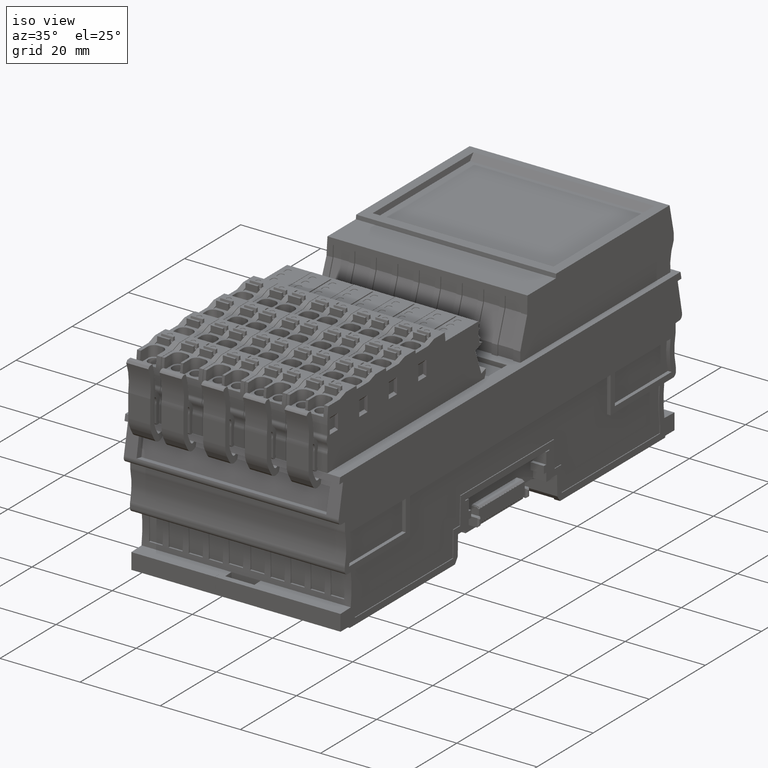
[diagram: clean part render]
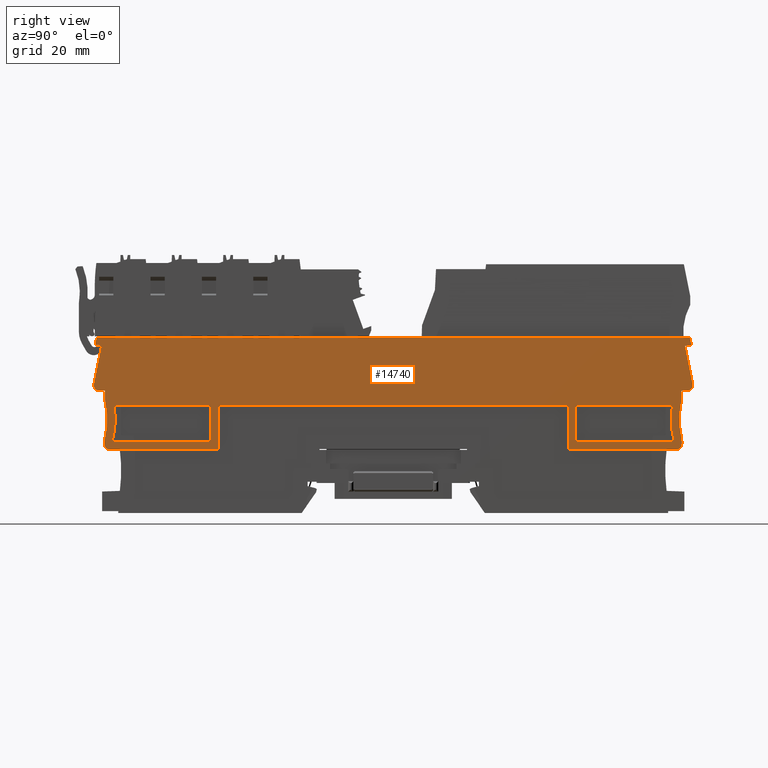
[diagram: tour spotlight — one face highlighted and labeled with its STEP entity id]
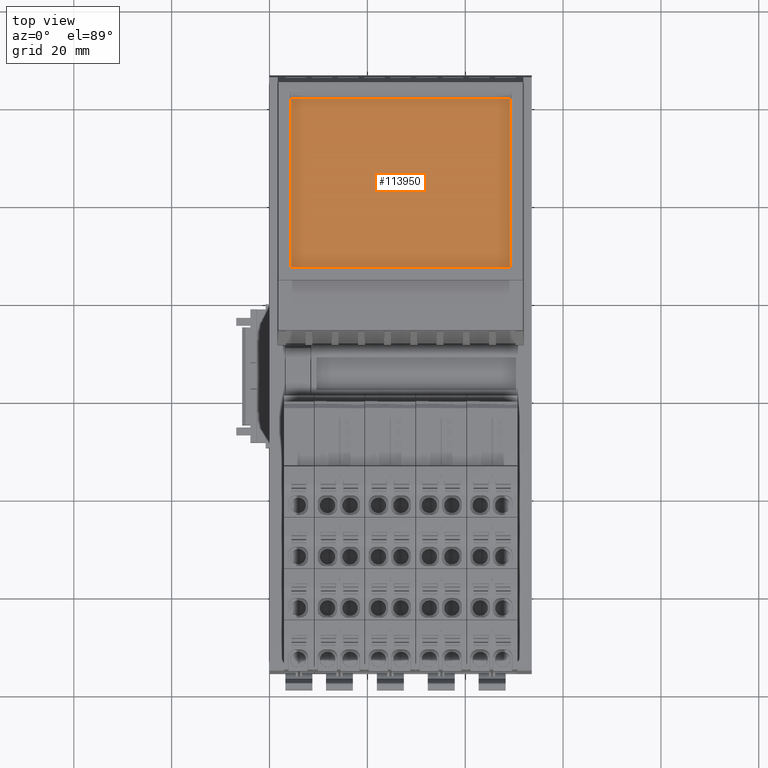
[diagram: tour spotlight — one face highlighted and labeled with its STEP entity id]
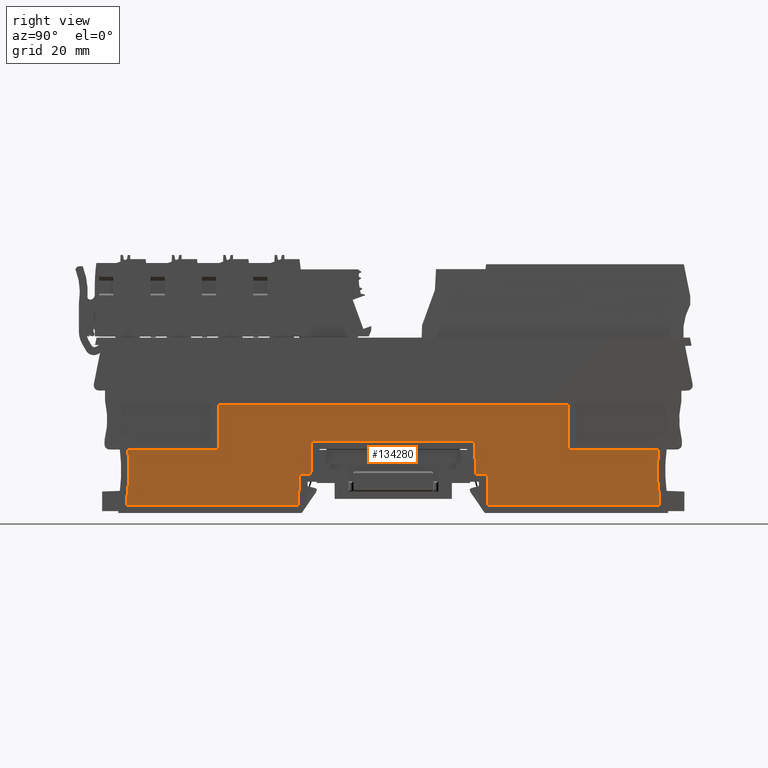
[diagram: tour spotlight — one face highlighted and labeled with its STEP entity id]
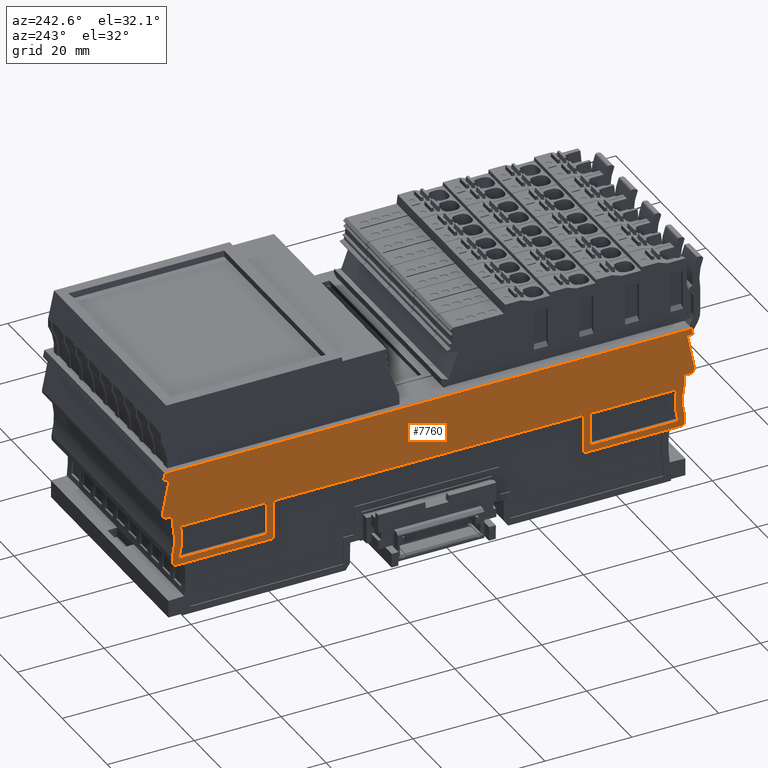
[diagram: tour spotlight — one face highlighted and labeled with its STEP entity id]
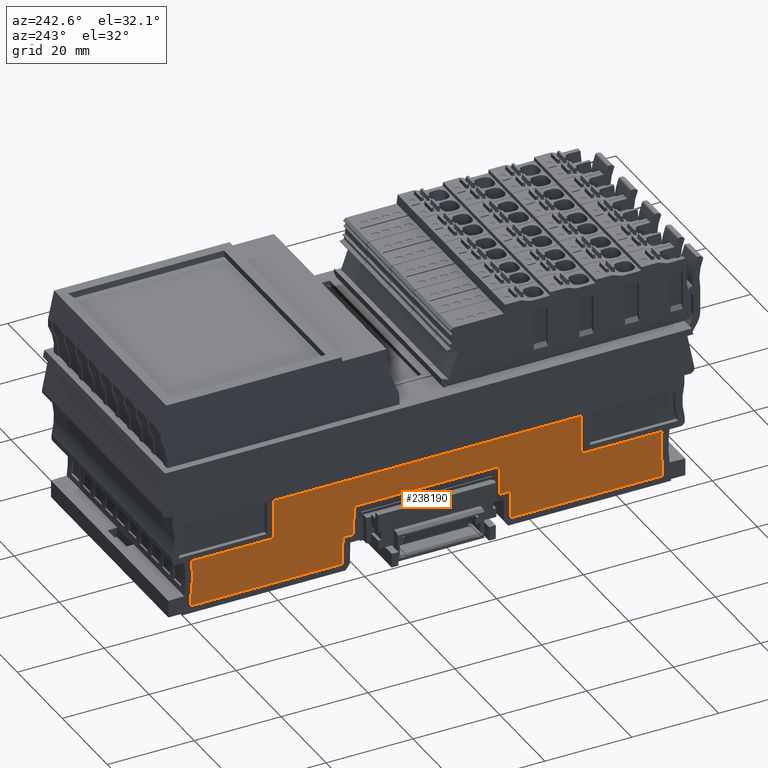
[diagram: tour spotlight — one face highlighted and labeled with its STEP entity id]
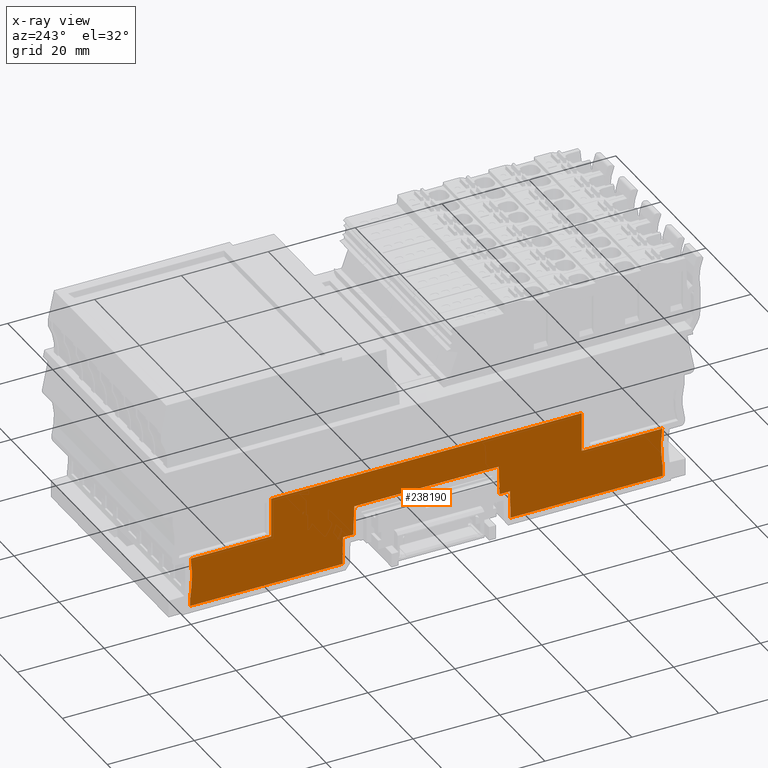
[diagram: x-ray of the same camera — body ghosted, this tour face saturated]
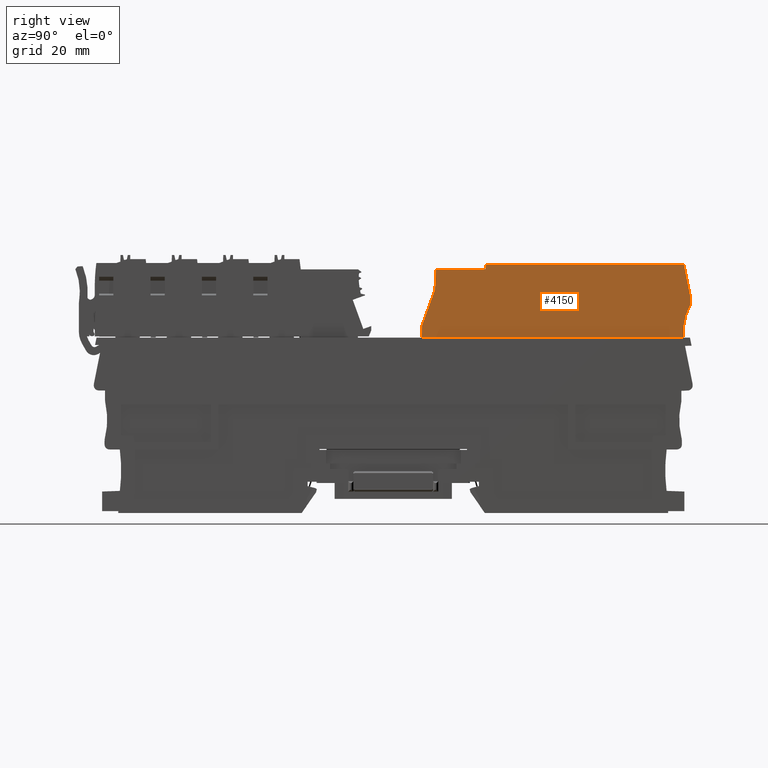
[diagram: tour spotlight — one face highlighted and labeled with its STEP entity id]
A machine part: a face-by-face anatomy tour. The part has 3724 B-rep faces; the first image is the clean iso view, then the 6 largest visible faces are spotlighted one at a time (largest first), each with its STEP entity span.

Face 1 — right view, entity #14740. In plain terms, the highlighted planar face has unit normal (1, -0, -0).
Definition (entity closure, byte-faithful):
#8270=CARTESIAN_POINT('',(93.815800781303,0.,3.70000000051144));
#8280=DIRECTION('',(0.313992455966661,-0.94942547764215,
-2.68035593720128E-13));
#8290=VECTOR('',#8280,1.);
#8300=LINE('',#8270,#8290);
#8310=CARTESIAN_POINT('',(80.842774783348,39.2268067927092,
3.70000000052251));
#8320=VERTEX_POINT('',#8310);
#8330=CARTESIAN_POINT('',(81.3687466988978,37.6364146426499,
3.70000000052206));
#8340=VERTEX_POINT('',#8330);
#8350=EDGE_CURVE('',#8320,#8340,#8300,.T.);
#10430=CARTESIAN_POINT('',(-37.9090186656117,14.7723236880623,
3.70000000144698));
#10440=DIRECTION('',(-7.58968217624116E-12,-4.17977253913716E-13,-1.));
#10450=DIRECTION('',(-0.121869343405398,0.992546151641291,
5.10087868628507E-13));
#10460=AXIS2_PLACEMENT_3D('',#10430,#10440,#10450);
#10470=CIRCLE('',#10460,1.);
#10480=CARTESIAN_POINT('',(-37.7871493222065,13.779777536421,
3.70000000144646));
#10490=VERTEX_POINT('',#10480);
#10500=CARTESIAN_POINT('',(-38.901564817253,14.6504543446571,
3.70000000145441));
#10510=VERTEX_POINT('',#10500);
#10520=EDGE_CURVE('',#10490,#10510,#10470,.T.);
#10860=CARTESIAN_POINT('',(80.0477578691952,37.4271905661819,
3.70000000052384));
#10870=VERTEX_POINT('',#10860);
#10900=CARTESIAN_POINT('',(0.,24.748871236802,3.70000000063159));
#10910=DIRECTION('',(-0.987688340595074,-0.156434465040634,
1.32951982756424E-12));
#10920=VECTOR('',#10910,1.);
#10930=LINE('',#10900,#10920);
#10940=EDGE_CURVE('',#8340,#10870,#10930,.T.);
#11550=CARTESIAN_POINT('',(79.6386639302353,31.2532861743375,
3.70000000052534));
#11560=DIRECTION('',(1.32156786577923E-12,1.54750484770808E-13,1.));
#11570=DIRECTION('',(0.992546151641322,0.121869343405148,
-1.33057643928266E-12));
#11580=AXIS2_PLACEMENT_3D('',#11550,#11560,#11570);
#11590=PLANE('',#11580);
#11600=CARTESIAN_POINT('',(0.,7.79022740937182,3.70000000063421));
#11610=DIRECTION('',(0.992546151641231,0.121869343405886,
-1.33057453943763E-12));
#11620=VECTOR('',#11610,1.);
#11630=LINE('',#11600,#11620);
#11640=CARTESIAN_POINT('',(60.2226611677651,15.1846404173057,
3.70000000055348));
#11650=VERTEX_POINT('',#11640);
#11660=CARTESIAN_POINT('',(80.2852212844979,17.6480130518428,
3.70000000052659));
#11670=VERTEX_POINT('',#11660);
#11680=EDGE_CURVE('',#11650,#11670,#11630,.T.);
#11690=ORIENTED_EDGE('',*,*,#11680,.F.);
#11700=CARTESIAN_POINT('',(95.4523300161358,24.1448440272239,
3.70000000050554));
#11710=DIRECTION('',(1.32156786577923E-12,1.54750484770808E-13,1.));
#11720=DIRECTION('',(-1.,0.,1.32156786577923E-12));
#11730=AXIS2_PLACEMENT_3D('',#11700,#11710,#11720);
#11740=CIRCLE('',#11730,16.4999999999999);
#11750=CARTESIAN_POINT('',(78.9826798540441,25.1451557477945,
3.70000000052715));
#11760=VERTEX_POINT('',#11750);
#11770=EDGE_CURVE('',#11760,#11670,#11740,.T.);
#11780=ORIENTED_EDGE('',*,*,#11770,.T.);
#11790=CARTESIAN_POINT('',(0.,15.4473020829513,3.70000000063303));
#11800=DIRECTION('',(-0.992546151641278,-0.121869343405506,
1.33058147833154E-12));
#11810=VECTOR('',#11800,1.);
#11820=LINE('',#11790,#11810);
#11830=CARTESIAN_POINT('',(59.2964541578763,22.727991169847,
3.70000000055354));
#11840=VERTEX_POINT('',#11830);
#11850=EDGE_CURVE('',#11760,#11840,#11820,.T.);
#11860=ORIENTED_EDGE('',*,*,#11850,.F.);
#11870=CARTESIAN_POINT('',(62.0871005738752,0.,3.70000000055337));
#11880=DIRECTION('',(0.121869343405321,-0.992546151641301,
-7.46624984060418E-15));
#11890=VECTOR('',#11880,1.);
#11900=LINE('',#11870,#11890);
#11910=EDGE_CURVE('',#11840,#11650,#11900,.T.);
#11920=ORIENTED_EDGE('',*,*,#11910,.F.);
#11930=EDGE_LOOP('',(#11920,#11860,#11780,#11690));
#11940=FACE_BOUND('',#11930,.T.);
#11950=CARTESIAN_POINT('',(0.,7.79022740939503,3.70000000063421));
#11960=DIRECTION('',(0.992546151641351,0.12186934340491,
-1.33057453943763E-12));
#11970=VECTOR('',#11960,1.);
#11980=LINE('',#11950,#11970);
#11990=CARTESIAN_POINT('',(-33.7850542939876,3.64194435283518,
3.70000000067951));
#12000=VERTEX_POINT('',#11990);
#12010=CARTESIAN_POINT('',(-13.7220277794501,6.10537425380112,
3.70000000065261));
#12020=VERTEX_POINT('',#12010);
#12030=EDGE_CURVE('',#12000,#12020,#11980,.T.);
#12040=ORIENTED_EDGE('',*,*,#12030,.F.);
#12050=CARTESIAN_POINT('',(-12.9723820825444,0.,3.70000000065256));
#12060=DIRECTION('',(0.121869343405931,-0.992546151641226,
-7.46624984060418E-15));
#12070=VECTOR('',#12060,1.);
#12080=LINE('',#12050,#12070);
#12090=CARTESIAN_POINT('',(-14.6482347893435,13.6487250063419,
3.70000000065267));
#12100=VERTEX_POINT('',#12090);
#12110=EDGE_CURVE('',#12100,#12020,#12080,.T.);
#12120=ORIENTED_EDGE('',*,*,#12110,.T.);
#12130=CARTESIAN_POINT('',(0.,15.4473020829562,3.70000000063303));
#12140=DIRECTION('',(-0.992546151641305,-0.12186934340529,
1.33058147833154E-12));
#12150=VECTOR('',#12140,1.);
#12160=LINE('',#12130,#12150);
#12170=CARTESIAN_POINT('',(-34.3349264116506,11.2315032198631,
3.70000000067906));
#12180=VERTEX_POINT('',#12170);
#12190=EDGE_CURVE('',#12100,#12180,#12160,.T.);
#12200=ORIENTED_EDGE('',*,*,#12190,.F.);
#12210=CARTESIAN_POINT('',(-50.0733605749496,6.27653701538715,
3.70000000070062));
#12220=DIRECTION('',(1.32156786577923E-12,1.54750484770808E-13,1.));
#12230=DIRECTION('',(-1.,0.,1.32156786577923E-12));
#12240=AXIS2_PLACEMENT_3D('',#12210,#12220,#12230);
#12250=CIRCLE('',#12240,16.4999999999999);
#12260=EDGE_CURVE('',#12000,#12180,#12250,.T.);
#12270=ORIENTED_EDGE('',*,*,#12260,.T.);
#12280=EDGE_LOOP('',(#12270,#12200,#12120,#12040));
#12290=FACE_BOUND('',#12280,.T.);
#12300=CARTESIAN_POINT('',(80.5890279730809,29.4209611834442,
3.70000000052436));
#12310=DIRECTION('',(1.32156786577923E-12,1.54750484770808E-13,1.));
#12320=DIRECTION('',(-1.,0.,1.32156786577923E-12));
#12330=AXIS2_PLACEMENT_3D('',#12300,#12310,#12320);
#12340=CIRCLE('',#12330,2.);
#12350=CARTESIAN_POINT('',(82.5741202763635,29.664699870255,
3.7000000005217));
#12360=VERTEX_POINT('',#12350);
#12370=CARTESIAN_POINT('',(82.4878789283654,30.0489460953767,
3.70000000052176));
#12380=VERTEX_POINT('',#12370);
#12390=EDGE_CURVE('',#12360,#12380,#12340,.T.);
#12400=ORIENTED_EDGE('',*,*,#12390,.T.);
#12410=CARTESIAN_POINT('',(86.2164874242568,0.,3.70000000052148));
#12420=DIRECTION('',(0.121869343405398,-0.992546151641291,
-7.46624984060418E-15));
#12430=VECTOR('',#12420,1.);
#12440=LINE('',#12410,#12430);
#12450=CARTESIAN_POINT('',(82.586213454047,29.5662088417853,
3.7000000005217));
#12460=VERTEX_POINT('',#12450);
#12470=EDGE_CURVE('',#12360,#12460,#12440,.T.);
#12480=ORIENTED_EDGE('',*,*,#12470,.F.);
#12490=CARTESIAN_POINT('',(81.5936673024057,29.44433949838,
3.70000000052303));
#12500=DIRECTION('',(1.32156786577923E-12,1.54750484770808E-13,1.));
#12510=DIRECTION('',(-1.,0.,1.32156786577923E-12));
#12520=AXIS2_PLACEMENT_3D('',#12490,#12500,#12510);
#12530=CIRCLE('',#12520,1.);
#12540=CARTESIAN_POINT('',(81.7673154800729,28.4595317453678,
3.70000000052295));
#12550=VERTEX_POINT('',#12540);
#12560=EDGE_CURVE('',#12550,#12460,#12530,.T.);
#12570=ORIENTED_EDGE('',*,*,#12560,.T.);
#12580=CARTESIAN_POINT('',(0.,14.0417478861087,3.70000000063325));
#12590=DIRECTION('',(-0.984807753012164,-0.173648177667179,
1.328381848964E-12));
#12600=VECTOR('',#12590,1.);
#12610=LINE('',#12580,#12600);
#12620=CARTESIAN_POINT('',(80.434159982601,28.2244604616833,
3.70000000052475));
#12630=VERTEX_POINT('',#12620);
#12640=EDGE_CURVE('',#12550,#12630,#12610,.T.);
#12650=ORIENTED_EDGE('',*,*,#12640,.F.);
#12660=CARTESIAN_POINT('',(83.8996879671174,0.,3.70000000052454));
#12670=DIRECTION('',(0.121869343405398,-0.992546151641291,
-7.46624984060418E-15));
#12680=VECTOR('',#12670,1.);
#12690=LINE('',#12660,#12680);
#12700=CARTESIAN_POINT('',(80.6674319708124,26.3246125820632,
3.70000000052474));
#12710=VERTEX_POINT('',#12700);
#12720=EDGE_CURVE('',#12630,#12710,#12690,.T.);
#12730=ORIENTED_EDGE('',*,*,#12720,.F.);
#12740=CARTESIAN_POINT('',(77.6897935158885,25.9590045518471,
3.70000000052873));
#12750=DIRECTION('',(1.32156786577923E-12,1.54750484770808E-13,1.));
#12760=DIRECTION('',(-1.,0.,1.32156786577923E-12));
#12770=AXIS2_PLACEMENT_3D('',#12740,#12750,#12760);
#12780=CIRCLE('',#12770,3.);
#12790=CARTESIAN_POINT('',(80.6750088727256,25.6615330854771,
3.70000000052483));
#12800=VERTEX_POINT('',#12790);
#12810=EDGE_CURVE('',#12800,#12710,#12780,.T.);
#12820=ORIENTED_EDGE('',*,*,#12810,.T.);
#12830=CARTESIAN_POINT('',(95.6508392461914,24.1692178958544,
3.70000000050527));
#12840=DIRECTION('',(1.32156786577923E-12,1.54750484770808E-13,1.));
#12850=DIRECTION('',(-1.,0.,1.32156786577923E-12));
#12860=AXIS2_PLACEMENT_3D('',#12830,#12840,#12850);
#12870=CIRCLE('',#12860,15.05);
#12880=CARTESIAN_POINT('',(81.6057878124132,18.7619052340487,
3.70000000052467));
#12890=VERTEX_POINT('',#12880);
#12900=EDGE_CURVE('',#12800,#12890,#12870,.T.);
#12910=ORIENTED_EDGE('',*,*,#12900,.F.);
#12920=CARTESIAN_POINT('',(78.8061097857464,17.6840356004661,
3.70000000052854));
#12930=DIRECTION('',(1.32156786577923E-12,1.54750484770808E-13,1.));
#12940=DIRECTION('',(-1.,0.,1.32156786577923E-12));
#12950=AXIS2_PLACEMENT_3D('',#12920,#12930,#12940);
#12960=CIRCLE('',#12950,3.);
#12970=CARTESIAN_POINT('',(81.7837482406701,18.0496436306838,
3.70000000052454));
#12980=VERTEX_POINT('',#12970);
#12990=EDGE_CURVE('',#12980,#12890,#12960,.T.);
#13000=ORIENTED_EDGE('',*,*,#12990,.T.);
#13010=CARTESIAN_POINT('',(83.999965808121,0.,3.70000000052441));
#13020=DIRECTION('',(-0.121869343405886,0.992546151641232,
7.46624984060418E-15));
#13030=VECTOR('',#13020,1.);
#13040=LINE('',#13010,#13030);
#13050=CARTESIAN_POINT('',(81.8710082001947,17.3389682893172,
3.70000000052454));
#13060=VERTEX_POINT('',#13050);
#13070=EDGE_CURVE('',#13060,#12980,#13040,.T.);
#13080=ORIENTED_EDGE('',*,*,#13070,.T.);
#13090=CARTESIAN_POINT('',(80.8784620485535,17.2170989459113,
3.70000000052587));
#13100=DIRECTION('',(1.32156786577923E-12,1.54750484770808E-13,1.));
#13110=DIRECTION('',(-1.,0.,1.32156786577923E-12));
#13120=AXIS2_PLACEMENT_3D('',#13090,#13100,#13110);
#13130=CIRCLE('',#13120,1.);
#13140=CARTESIAN_POINT('',(81.0003313919592,16.2245527942696,
3.70000000055433));
#13150=VERTEX_POINT('',#13140);
#13160=EDGE_CURVE('',#13150,#13060,#13130,.T.);
#13170=ORIENTED_EDGE('',*,*,#13160,.T.);
#13180=CARTESIAN_POINT('',(0.,6.27896267125826,3.70000000063445));
#13190=DIRECTION('',(-0.992546151641231,-0.121869343405886,
1.33057453943763E-12));
#13200=VECTOR('',#13190,1.);
#13210=LINE('',#13180,#13200);
#13220=CARTESIAN_POINT('',(58.916645635253,13.5130171354993,
3.70000000055547));
#13230=VERTEX_POINT('',#13220);
#13240=EDGE_CURVE('',#13150,#13230,#13210,.T.);
#13250=ORIENTED_EDGE('',*,*,#13240,.F.);
#13260=CARTESIAN_POINT('',(60.5758355107111,0.,3.70000000055536));
#13270=DIRECTION('',(-0.121869343405321,0.992546151641301,
7.46624984060418E-15));
#13280=VECTOR('',#13270,1.);
#13290=LINE('',#13260,#13280);
#13300=CARTESIAN_POINT('',(57.8076346102601,22.5451871154718,
3.70000000055553));
#13310=VERTEX_POINT('',#13300);
#13320=EDGE_CURVE('',#13230,#13310,#13290,.T.);
#13330=ORIENTED_EDGE('',*,*,#13320,.F.);
#13340=CARTESIAN_POINT('',(0.,15.4473020829924,3.70000000063303));
#13350=DIRECTION('',(0.992546151641274,0.121869343405538,
-1.33057453943763E-12));
#13360=VECTOR('',#13350,1.);
#13370=LINE('',#13340,#13360);
#13380=CARTESIAN_POINT('',(-13.1594152417363,13.8315290607915,
3.70000000065067));
#13390=VERTEX_POINT('',#13380);
#13400=EDGE_CURVE('',#13390,#13310,#13370,.T.);
#13410=ORIENTED_EDGE('',*,*,#13400,.T.);
#13420=CARTESIAN_POINT('',(-11.4611170193802,0.,3.70000000065057));
#13430=DIRECTION('',(-0.121869343405931,0.992546151641226,
7.46624984060418E-15));
#13440=VECTOR('',#13430,1.);
#13450=LINE('',#13420,#13440);
#13460=CARTESIAN_POINT('',(-12.0504042167386,4.79935908082569,
3.7000000006506));
#13470=VERTEX_POINT('',#13460);
#13480=EDGE_CURVE('',#13470,#13390,#13450,.T.);
#13490=ORIENTED_EDGE('',*,*,#13480,.T.);
#13500=CARTESIAN_POINT('',(0.,6.27896267127504,3.70000000063445));
#13510=DIRECTION('',(-0.992546151641376,-0.121869343404709,
1.33058147833154E-12));
#13520=VECTOR('',#13510,1.);
#13530=LINE('',#13500,#13520);
#13540=CARTESIAN_POINT('',(-34.1350221984192,2.08770895924654,
3.70000000068021));
#13550=VERTEX_POINT('',#13540);
#13560=EDGE_CURVE('',#13470,#13550,#13530,.T.);
#13570=ORIENTED_EDGE('',*,*,#13560,.F.);
#13580=CARTESIAN_POINT('',(-34.2568915418222,3.08025511087354,
3.70000000068022));
#13590=DIRECTION('',(1.32156786577923E-12,1.54750484770808E-13,1.));
#13600=DIRECTION('',(-1.,0.,1.32156786577923E-12));
#13610=AXIS2_PLACEMENT_3D('',#13580,#13590,#13600);
#13620=CIRCLE('',#13610,1.);
#13630=CARTESIAN_POINT('',(-35.2494376934635,2.95838576746863,
3.70000000068155));
#13640=VERTEX_POINT('',#13630);
#13650=EDGE_CURVE('',#13640,#13550,#13620,.T.);
#13660=ORIENTED_EDGE('',*,*,#13650,.T.);
#13670=CARTESIAN_POINT('',(-39.0030134710266,33.5288072436565,
3.70000000145875));
#13680=DIRECTION('',(0.12186934340491,-0.992546151641351,
-1.10425502667236E-12));
#13690=VECTOR('',#13680,1.);
#13700=LINE('',#13670,#13690);
#13710=CARTESIAN_POINT('',(-35.3364692465699,3.66720087515703,
3.70000000142553));
#13720=VERTEX_POINT('',#13710);
#13730=EDGE_CURVE('',#13720,#13640,#13700,.T.);
#13740=ORIENTED_EDGE('',*,*,#13730,.T.);
#13750=CARTESIAN_POINT('',(-32.3588307902328,4.03280890554563,
3.70000000140321));
#13760=DIRECTION('',(7.50284653573329E-12,9.77385265280061E-13,1.));
#13770=DIRECTION('',(-0.121869343405523,0.992546151641276,
-5.57330027423933E-14));
#13780=AXIS2_PLACEMENT_3D('',#13750,#13760,#13770);
#13790=CIRCLE('',#13780,3.);
#13800=CARTESIAN_POINT('',(-35.3360671916786,4.40167664648861,
3.7000000014267));
#13810=VERTEX_POINT('',#13800);
#13820=EDGE_CURVE('',#13810,#13720,#13790,.T.);
#13830=ORIENTED_EDGE('',*,*,#13820,.T.);
#13840=CARTESIAN_POINT('',(-50.2718698052742,6.25216314676647,
3.70000000153834));
#13850=DIRECTION('',(7.5885884426013E-12,9.3590051218711E-13,1.));
#13860=DIRECTION('',(0.992546151641307,0.121869343405273,
-7.64608183600653E-12));
#13870=AXIS2_PLACEMENT_3D('',#13840,#13850,#13860);
#13880=CIRCLE('',#13870,15.05);
#13890=CARTESIAN_POINT('',(-36.1019093192676,11.3231314749902,
3.70000000143348));
#13900=VERTEX_POINT('',#13890);
#13910=EDGE_CURVE('',#13810,#13900,#13880,.T.);
#13920=ORIENTED_EDGE('',*,*,#13910,.F.);
#13930=CARTESIAN_POINT('',(-33.2773324766416,12.3339557270137,
3.70000000141168));
#13940=DIRECTION('',(7.50284653573329E-12,9.77385265280061E-13,1.));
#13950=DIRECTION('',(-0.121869343405523,0.992546151641276,
-5.57330027423933E-14));
#13960=AXIS2_PLACEMENT_3D('',#13930,#13940,#13950);
#13970=CIRCLE('',#13960,3.);
#13980=CARTESIAN_POINT('',(-36.2549709329744,11.9683476966242,
3.70000000143438));
#13990=VERTEX_POINT('',#13980);
#14000=EDGE_CURVE('',#13990,#13900,#13970,.T.);
#14010=ORIENTED_EDGE('',*,*,#14000,.T.);
#14020=CARTESIAN_POINT('',(-34.7854426158993,3.76849129679613E-9,
3.70000000142069));
#14030=DIRECTION('',(0.121869343405197,-0.992546151641316,
-1.1042555758678E-12));
#14040=VECTOR('',#14030,1.);
#14050=LINE('',#14020,#14040);
#14060=CARTESIAN_POINT('',(-36.4968393255422,13.9382076827901,
3.7000000014362));
#14070=VERTEX_POINT('',#14060);
#14080=EDGE_CURVE('',#14070,#13990,#14050,.T.);
#14090=ORIENTED_EDGE('',*,*,#14080,.T.);
#14100=CARTESIAN_POINT('',(-1.53261652258152E-8,18.4194560718407,
3.70000000116263));
#14110=DIRECTION('',(-0.992546151641316,-0.121869343405197,
7.43974326589125E-12));
#14120=VECTOR('',#14110,1.);
#14130=LINE('',#14100,#14120);
#14140=EDGE_CURVE('',#14070,#10490,#14130,.T.);
#14150=ORIENTED_EDGE('',*,*,#14140,.F.);
#14160=ORIENTED_EDGE('',*,*,#10520,.F.);
#14170=CARTESIAN_POINT('',(-41.2109888734647,33.4592039184621,
3.7000000014751));
#14180=DIRECTION('',(0.121869343405398,-0.992546151641291,
-1.10425502667602E-12));
#14190=VECTOR('',#14180,1.);
#14200=LINE('',#14170,#14190);
#14210=CARTESIAN_POINT('',(-38.9132423908747,14.7455605606277,
3.70000000068456));
#14220=VERTEX_POINT('',#14210);
#14230=EDGE_CURVE('',#14220,#10510,#14200,.T.);
#14240=ORIENTED_EDGE('',*,*,#14230,.T.);
#14250=CARTESIAN_POINT('',(-36.9281500875921,14.9892992474384,
3.7000000006819));
#14260=DIRECTION('',(1.32156786577923E-12,1.54750484770808E-13,1.));
#14270=DIRECTION('',(-1.,0.,1.32156786577923E-12));
#14280=AXIS2_PLACEMENT_3D('',#14250,#14260,#14270);
#14290=CIRCLE('',#14280,2.);
#14300=CARTESIAN_POINT('',(-38.9225203559505,15.1392567011859,
3.70000000068452));
#14310=VERTEX_POINT('',#14300);
#14320=EDGE_CURVE('',#14310,#14220,#14290,.T.);
#14330=ORIENTED_EDGE('',*,*,#14320,.T.);
#14340=CARTESIAN_POINT('',(-37.510876360429,33.9135206086674,
3.70000000144738));
#14350=DIRECTION('',(-0.0749787268246369,-0.997185133525243,
3.74922733441569E-13));
#14360=VECTOR('',#14350,1.);
#14370=LINE('',#14340,#14360);
#14380=CARTESIAN_POINT('',(-38.325185462403,23.0835563819879,
3.7000000006825));
#14390=VERTEX_POINT('',#14380);
#14400=EDGE_CURVE('',#14390,#14310,#14370,.T.);
#14410=ORIENTED_EDGE('',*,*,#14400,.T.);
#14420=CARTESIAN_POINT('',(0.,27.7892974505114,3.70000000063112));
#14430=DIRECTION('',(-0.992546151641322,-0.121869343405147,
1.33057453943763E-12));
#14440=VECTOR('',#14430,1.);
#14450=LINE('',#14420,#14440);
#14460=CARTESIAN_POINT('',(-39.6550720687103,22.9202668389818,
3.70000000068428));
#14470=VERTEX_POINT('',#14460);
#14480=EDGE_CURVE('',#14390,#14470,#14450,.T.);
#14490=ORIENTED_EDGE('',*,*,#14480,.F.);
#14500=CARTESIAN_POINT('',(-41.3784555892675,0.,3.7000000006901));
#14510=DIRECTION('',(-0.074978726824385,-0.997185133525262,
2.53408405370692E-13));
#14520=VECTOR('',#14510,1.);
#14530=LINE('',#14500,#14520);
#14540=CARTESIAN_POINT('',(-39.5403806460796,24.4456139132008,
3.70000000068389));
#14550=VERTEX_POINT('',#14540);
#14560=EDGE_CURVE('',#14550,#14470,#14530,.T.);
#14570=ORIENTED_EDGE('',*,*,#14560,.T.);
#14580=CARTESIAN_POINT('',(0.,29.3005621887634,3.70000000063089));
#14590=DIRECTION('',(-0.992546151641322,-0.121869343405148,
1.33057453943763E-12));
#14600=VECTOR('',#14590,1.);
#14610=LINE('',#14580,#14600);
#14620=EDGE_CURVE('',#8320,#14550,#14610,.T.);
#14630=ORIENTED_EDGE('',*,*,#14620,.T.);
#14640=ORIENTED_EDGE('',*,*,#8350,.F.);
#14650=ORIENTED_EDGE('',*,*,#10940,.F.);
#14660=CARTESIAN_POINT('',(92.4256177039416,0.,3.70000000051327));
#14670=DIRECTION('',(0.313992455966276,-0.949425477642277,
-2.68035593720128E-13));
#14680=VECTOR('',#14670,1.);
#14690=LINE('',#14660,#14680);
#14700=EDGE_CURVE('',#10870,#12380,#14690,.T.);
#14710=ORIENTED_EDGE('',*,*,#14700,.F.);
#14720=EDGE_LOOP('',(#14710,#14650,#14640,#14630,#14570,#14490,#14410,
#14330,#14240,#14160,#14150,#14090,#14010,#13920,#13830,#13740,#13660,
#13570,#13490,#13410,#13330,#13250,#13170,#13080,#13000,#12910,#12820,
#12730,#12650,#12570,#12480,#12400));
#14730=FACE_OUTER_BOUND('',#14720,.T.);
#14740=ADVANCED_FACE('',(#11940,#12290,#14730),#11590,.T.);

Face 2 — top view, entity #113950. In plain terms, the highlighted planar face has unit normal (-0, 0, 1).
Definition (entity closure, byte-faithful):
#110230=CARTESIAN_POINT('',(74.5555165529137,52.1569611703615,
-0.643744289520966));
#110240=VERTEX_POINT('',#110230);
#110270=CARTESIAN_POINT('',(74.5555165529184,52.1569611703625,0.));
#110280=DIRECTION('',(7.40740491584608E-12,1.61380685477058E-12,1.));
#110290=VECTOR('',#110280,1.);
#110300=LINE('',#110270,#110290);
#110310=CARTESIAN_POINT('',(74.555516552581,52.156961170289,
-45.556255625995));
#110320=VERTEX_POINT('',#110310);
#110330=EDGE_CURVE('',#110320,#110240,#110300,.T.);
#113650=CARTESIAN_POINT('',(39.5682647075963,47.8610668153365,
35.0000000425078));
#113660=DIRECTION('',(-0.121869343405803,0.992546151641242,
-6.99042209759714E-13));
#113670=DIRECTION('',(7.40740491584608E-12,1.61380685477058E-12,1.));
#113680=AXIS2_PLACEMENT_3D('',#113650,#113660,#113670);
#113690=PLANE('',#113680);
#113700=CARTESIAN_POINT('',(0.,43.0026948074728,-0.64374428895393));
#113710=DIRECTION('',(-0.992546151641242,-0.121869343405803,
7.54886995881527E-12));
#113720=VECTOR('',#113710,1.);
#113730=LINE('',#113700,#113720);
#113740=CARTESIAN_POINT('',(40.3213367998216,47.953532441484,
-0.643744289260596));
#113750=VERTEX_POINT('',#113740);
#113760=EDGE_CURVE('',#110240,#113750,#113730,.T.);
#113770=ORIENTED_EDGE('',*,*,#113760,.F.);
#113780=CARTESIAN_POINT('',(40.3213367998263,47.953532441485,0.));
#113790=DIRECTION('',(7.40740491584608E-12,1.61380685477058E-12,1.));
#113800=VECTOR('',#113790,1.);
#113810=LINE('',#113780,#113800);
#113820=CARTESIAN_POINT('',(40.3213367994889,47.9535324414115,
-45.5562556257346));
#113830=VERTEX_POINT('',#113820);
#113840=EDGE_CURVE('',#113830,#113750,#113810,.T.);
#113850=ORIENTED_EDGE('',*,*,#113840,.T.);
#113860=CARTESIAN_POINT('',(0.,43.0026948074411,-45.5562556254279));
#113870=DIRECTION('',(-0.992546151641242,-0.121869343405803,
7.54884906261722E-12));
#113880=VECTOR('',#113870,1.);
#113890=LINE('',#113860,#113880);
#113900=EDGE_CURVE('',#110320,#113830,#113890,.T.);
#113910=ORIENTED_EDGE('',*,*,#113900,.T.);
#113920=ORIENTED_EDGE('',*,*,#110330,.F.);
#113930=EDGE_LOOP('',(#113920,#113910,#113850,#113770));
#113940=FACE_OUTER_BOUND('',#113930,.T.);
#113950=ADVANCED_FACE('',(#113940),#113690,.T.);

Face 3 — right view, entity #134280. In plain terms, the highlighted planar face has unit normal (-1, 0, 0).
Definition (entity closure, byte-faithful):
#97470=CARTESIAN_POINT('',(77.3043721213402,15.7707460581101,
2.80000000139183));
#97480=VERTEX_POINT('',#97470);
#97510=CARTESIAN_POINT('',(0.,6.27896267125821,2.80000000110418));
#97520=DIRECTION('',(-0.992546151641231,-0.121869343405886,
-3.69326791371805E-12));
#97530=VECTOR('',#97520,1.);
#97540=LINE('',#97510,#97530);
#97550=CARTESIAN_POINT('',(58.9166456351861,13.513017135491,
2.8000000013234));
#97560=VERTEX_POINT('',#97550);
#97570=EDGE_CURVE('',#97480,#97560,#97540,.T.);
#102110=CARTESIAN_POINT('',(-12.0504042166852,4.7993590808322,
2.80000000105934));
#102120=VERTEX_POINT('',#102110);
#102150=CARTESIAN_POINT('',(0.,6.27896267127499,2.80000000110418));
#102160=DIRECTION('',(-0.992546151641376,-0.121869343404709,
-3.69326791371805E-12));
#102170=VECTOR('',#102160,1.);
#102180=LINE('',#102150,#102170);
#102190=CARTESIAN_POINT('',(-30.4390629302317,2.54151569510426,
2.80000000099091));
#102200=VERTEX_POINT('',#102190);
#102210=EDGE_CURVE('',#102120,#102200,#102180,.T.);
#131830=CARTESIAN_POINT('',(-29.4078582783544,-6.87211907401066,
2.80000000098537));
#131840=VERTEX_POINT('',#131830);
#131870=CARTESIAN_POINT('',(-30.251648401332,0.,2.80000000098645));
#131880=DIRECTION('',(0.121869343405539,-0.992546151641274,
-1.57467788808319E-12));
#131890=VECTOR('',#131880,1.);
#131900=LINE('',#131870,#131890);
#131910=CARTESIAN_POINT('',(-29.1725454181969,-8.78858852608461,
2.8000000009725));
#131920=VERTEX_POINT('',#131910);
#131930=EDGE_CURVE('',#131840,#131920,#131900,.T.);
#132200=CARTESIAN_POINT('',(5.63251622227872,-4.51506431532444,
2.80000000110201));
#132210=VERTEX_POINT('',#132200);
#132260=CARTESIAN_POINT('',(0.,-5.20665034646122,2.80000000108105));
#132270=DIRECTION('',(0.992546151641198,0.121869343406155,
3.69326791371805E-12));
#132280=VECTOR('',#132270,1.);
#132290=LINE('',#132260,#132280);
#132300=EDGE_CURVE('',#131920,#132210,#132290,.T.);
#132900=CARTESIAN_POINT('',(43.1215029436729,6.53606734086375,
2.80000000125449));
#132910=VERTEX_POINT('',#132900);
#132940=CARTESIAN_POINT('',(44.0400873034286,0.,2.80000000124452));
#132950=DIRECTION('',(0.139173100960016,-0.990268068741577,
-1.50997270242925E-12));
#132960=VECTOR('',#132950,1.);
#132970=LINE('',#132940,#132960);
#132980=CARTESIAN_POINT('',(44.0123464695942,0.197386289138983,
2.80000000124483));
#132990=VERTEX_POINT('',#132980);
#133000=EDGE_CURVE('',#132910,#132990,#132970,.T.);
#133180=CARTESIAN_POINT('',(-24.1029654223059,-5.97422914989019,
2.80000000099578));
#133190=DIRECTION('',(3.47382654193631E-12,2.01303365496339E-12,-1.));
#133200=DIRECTION('',(-0.99254615164137,-0.121869343404761,
-3.69326025545061E-12));
#133210=AXIS2_PLACEMENT_3D('',#133180,#133190,#133200);
#133220=PLANE('',#133210);
#133230=CARTESIAN_POINT('',(110.903735656606,15.5639369068662,
2.80000000150813));
#133240=DIRECTION('',(-3.71422913355509E-12,-4.00157385418018E-13,1.));
#133250=DIRECTION('',(0.992546151641291,0.121869343405398,
3.73531075064378E-12));
#133260=AXIS2_PLACEMENT_3D('',#133230,#133240,#133250);
#133270=CIRCLE('',#133260,33.6);
#133280=CARTESIAN_POINT('',(78.5811630214924,6.38726549247054,
2.80000000137737));
#133290=VERTEX_POINT('',#133280);
#133300=EDGE_CURVE('',#97480,#133290,#133270,.T.);
#133310=ORIENTED_EDGE('',*,*,#133300,.F.);
#133320=CARTESIAN_POINT('',(79.3654206103564,0.,2.80000000136724));
#133330=DIRECTION('',(-0.121869343405257,0.992546151641309,
1.57467788808319E-12));
#133340=VECTOR('',#133330,1.);
#133350=LINE('',#133320,#133340);
#133360=CARTESIAN_POINT('',(78.8164758821081,4.47079603666059,
2.80000000137433));
#133370=VERTEX_POINT('',#133360);
#133380=EDGE_CURVE('',#133370,#133290,#133350,.T.);
#133390=ORIENTED_EDGE('',*,*,#133380,.T.);
#133400=CARTESIAN_POINT('',(0.,-5.20665034643441,2.80000000108105));
#133410=DIRECTION('',(0.992546151641328,0.121869343405098,
3.69326791371805E-12));
#133420=VECTOR('',#133410,1.);
#133430=LINE('',#133400,#133420);
#133440=EDGE_CURVE('',#132990,#133370,#133430,.T.);
#133450=ORIENTED_EDGE('',*,*,#133440,.T.);
#133460=ORIENTED_EDGE('',*,*,#133000,.T.);
#133470=CARTESIAN_POINT('',(0.,1.2414125364592,2.80000000109403));
#133480=DIRECTION('',(0.992546151641343,0.121869343404974,
3.69326791371805E-12));
#133490=VECTOR('',#133480,1.);
#133500=LINE('',#133470,#133490);
#133510=CARTESIAN_POINT('',(40.7619936262765,6.24635602538132,
2.80000000124571));
#133520=VERTEX_POINT('',#133510);
#133530=EDGE_CURVE('',#133520,#132910,#133500,.T.);
#133540=ORIENTED_EDGE('',*,*,#133530,.T.);
#133550=CARTESIAN_POINT('',(41.751319229424,0.,2.80000000123657));
#133560=DIRECTION('',(-0.15643446504018,0.987688340595146,
1.44483036645937E-12));
#133570=VECTOR('',#133560,1.);
#133580=LINE('',#133550,#133570);
#133590=CARTESIAN_POINT('',(39.7132438404768,12.8679015739919,
2.8000000012554));
#133600=VERTEX_POINT('',#133590);
#133610=EDGE_CURVE('',#133520,#133600,#133580,.T.);
#133620=ORIENTED_EDGE('',*,*,#133610,.F.);
#133630=CARTESIAN_POINT('',(0.,7.99172836702443,2.80000000110762));
#133640=DIRECTION('',(0.992546151641369,0.121869343404768,
3.69326791371805E-12));
#133650=VECTOR('',#133640,1.);
#133660=LINE('',#133630,#133650);
#133670=CARTESIAN_POINT('',(6.73861180346425,8.8191258584053,
2.8000000011327));
#133680=VERTEX_POINT('',#133670);
#133690=EDGE_CURVE('',#133680,#133600,#133660,.T.);
#133700=ORIENTED_EDGE('',*,*,#133690,.T.);
#133710=CARTESIAN_POINT('',(7.51018533829207,0.,2.80000000111762));
#133720=DIRECTION('',(-0.0871557427486701,0.996194698091657,
1.70261027498952E-12));
#133730=VECTOR('',#133720,1.);
#133740=LINE('',#133710,#133730);
#133750=CARTESIAN_POINT('',(7.32291121929824,2.14055297502809,
2.80000000112128));
#133760=VERTEX_POINT('',#133750);
#133770=EDGE_CURVE('',#133760,#133680,#133740,.T.);
#133780=ORIENTED_EDGE('',*,*,#133770,.T.);
#133790=CARTESIAN_POINT('',(0.,1.24141253642713,2.80000000109403));
#133800=DIRECTION('',(0.992546151641183,0.121869343406278,
3.69326791371805E-12));
#133810=VECTOR('',#133800,1.);
#133820=LINE('',#133790,#133810);
#133830=CARTESIAN_POINT('',(4.96343215261972,1.85084537386364,
2.8000000011125));
#133840=VERTEX_POINT('',#133830);
#133850=EDGE_CURVE('',#133840,#133760,#133820,.T.);
#133860=ORIENTED_EDGE('',*,*,#133850,.T.);
#133870=CARTESIAN_POINT('',(5.15796384023657,0.,2.80000000110945));
#133880=DIRECTION('',(-0.104528463268663,0.994521895368167,
1.63889041226994E-12));
#133890=VECTOR('',#133880,1.);
#133900=LINE('',#133870,#133890);
#133910=EDGE_CURVE('',#132210,#133840,#133900,.T.);
#133920=ORIENTED_EDGE('',*,*,#133910,.T.);
#133930=ORIENTED_EDGE('',*,*,#132300,.T.);
#133940=ORIENTED_EDGE('',*,*,#131930,.T.);
#133950=CARTESIAN_POINT('',(-62.9903501121935,-5.7875720579124,
2.80000000086107));
#133960=DIRECTION('',(-3.71422913355509E-12,-4.00157385418018E-13,1.));
#133970=DIRECTION('',(0.992546151641291,0.121869343405398,
3.73531075064378E-12));
#133980=AXIS2_PLACEMENT_3D('',#133950,#133960,#133970);
#133990=CIRCLE('',#133980,33.6);
#134000=EDGE_CURVE('',#131840,#102200,#133990,.T.);
#134010=ORIENTED_EDGE('',*,*,#134000,.F.);
#134020=ORIENTED_EDGE('',*,*,#102210,.T.);
#134030=CARTESIAN_POINT('',(-11.461117019326,0.,2.80000000105172));
#134040=DIRECTION('',(0.121869343405931,-0.992546151641226,
-1.57467788808319E-12));
#134050=VECTOR('',#134040,1.);
#134060=LINE('',#134030,#134050);
#134070=CARTESIAN_POINT('',(-13.1594152416829,13.831529060798,
2.80000000107367));
#134080=VERTEX_POINT('',#134070);
#134090=EDGE_CURVE('',#134080,#102120,#134060,.T.);
#134100=ORIENTED_EDGE('',*,*,#134090,.T.);
#134110=CARTESIAN_POINT('',(0.,15.4473020829923,2.80000000112263));
#134120=DIRECTION('',(-0.992546151641274,-0.121869343405538,
-3.69326791371805E-12));
#134130=VECTOR('',#134120,1.);
#134140=LINE('',#134110,#134130);
#134150=CARTESIAN_POINT('',(57.8076346101931,22.5451871154635,
2.80000000133773));
#134160=VERTEX_POINT('',#134150);
#134170=EDGE_CURVE('',#134160,#134080,#134140,.T.);
#134180=ORIENTED_EDGE('',*,*,#134170,.T.);
#134190=CARTESIAN_POINT('',(60.5758355106432,0.,2.80000000130197));
#134200=DIRECTION('',(0.121869343405321,-0.992546151641301,
-1.57467788808319E-12));
#134210=VECTOR('',#134200,1.);
#134220=LINE('',#134190,#134210);
#134230=EDGE_CURVE('',#134160,#97560,#134220,.T.);
#134240=ORIENTED_EDGE('',*,*,#134230,.F.);
#134250=ORIENTED_EDGE('',*,*,#97570,.T.);
#134260=EDGE_LOOP('',(#134250,#134240,#134180,#134100,#134020,#134010,
#133940,#133930,#133920,#133860,#133780,#133700,#133620,#133540,#133460,
#133450,#133390,#133310));
#134270=FACE_OUTER_BOUND('',#134260,.T.);
#134280=ADVANCED_FACE('',(#134270),#133220,.F.);

Face 4 — auxiliary view, entity #7760. In plain terms, the highlighted planar face has unit normal (1, -0, -0).
Definition (entity closure, byte-faithful):
#4230=CARTESIAN_POINT('',(-36.0901322563605,21.8970971616303,
-49.8999999993165));
#4240=DIRECTION('',(1.43539554416144E-12,1.83252795324452E-13,1.));
#4250=DIRECTION('',(0.992546151641322,0.121869343405147,
-1.44702922128389E-12));
#4260=AXIS2_PLACEMENT_3D('',#4230,#4240,#4250);
#4270=PLANE('',#4260);
#4280=CARTESIAN_POINT('',(0.,7.79022740945466,-49.8999999993657));
#4290=DIRECTION('',(0.992546151641351,0.12186934340491,
-1.44703693472081E-12));
#4300=VECTOR('',#4290,1.);
#4310=LINE('',#4280,#4300);
#4320=CARTESIAN_POINT('',(-33.7850542943907,3.64194435284533,
-49.8999999993165));
#4330=VERTEX_POINT('',#4320);
#4340=CARTESIAN_POINT('',(-13.7224938895199,6.10531702274051,
-49.8999999993457));
#4350=VERTEX_POINT('',#4340);
#4360=EDGE_CURVE('',#4330,#4350,#4310,.T.);
#4370=ORIENTED_EDGE('',*,*,#4360,.T.);
#4380=CARTESIAN_POINT('',(-50.0733605753526,6.27653701539729,
-49.8999999992936));
#4390=DIRECTION('',(1.43539554416144E-12,1.83252795324452E-13,1.));
#4400=DIRECTION('',(-1.,0.,1.43539554416144E-12));
#4410=AXIS2_PLACEMENT_3D('',#4380,#4390,#4400);
#4420=CIRCLE('',#4410,16.4999999999999);
#4430=CARTESIAN_POINT('',(-34.3349264120536,11.2315032198733,
-49.8999999993171));
#4440=VERTEX_POINT('',#4430);
#4450=EDGE_CURVE('',#4330,#4440,#4420,.T.);
#4460=ORIENTED_EDGE('',*,*,#4450,.F.);
#4470=CARTESIAN_POINT('',(0.,15.4473020830158,-49.8999999993671));
#4480=DIRECTION('',(-0.992546151641305,-0.12186934340529,
1.44702999582691E-12));
#4490=VECTOR('',#4480,1.);
#4500=LINE('',#4470,#4490);
#4510=CARTESIAN_POINT('',(-14.6487008994083,13.6486677752819,
-49.8999999993458));
#4520=VERTEX_POINT('',#4510);
#4530=EDGE_CURVE('',#4520,#4440,#4500,.T.);
#4540=ORIENTED_EDGE('',*,*,#4530,.T.);
#4550=CARTESIAN_POINT('',(-17.4151349953926,36.1794654231156,
-49.8999999995197));
#4560=DIRECTION('',(0.121869343405273,-0.992546151641307,
-1.10425502667515E-12));
#4570=VECTOR('',#4560,1.);
#4580=LINE('',#4550,#4570);
#4590=EDGE_CURVE('',#4520,#4350,#4580,.T.);
#4600=ORIENTED_EDGE('',*,*,#4590,.F.);
#4610=EDGE_LOOP('',(#4600,#4540,#4460,#4370));
#4620=FACE_BOUND('',#4610,.T.);
#4630=CARTESIAN_POINT('',(0.,7.79022740943145,-49.8999999993657));
#4640=DIRECTION('',(-0.992546151641231,-0.121869343405886,
1.44703693472081E-12));
#4650=VECTOR('',#4640,1.);
#4660=LINE('',#4630,#4650);
#4670=CARTESIAN_POINT('',(80.2847554544381,17.6479558551623,
-49.8999999994828));
#4680=VERTEX_POINT('',#4670);
#4690=CARTESIAN_POINT('',(60.2221947294206,15.184583145938,
-49.9000000001074));
#4700=VERTEX_POINT('',#4690);
#4710=EDGE_CURVE('',#4680,#4700,#4660,.T.);
#4720=ORIENTED_EDGE('',*,*,#4710,.F.);
#4730=CARTESIAN_POINT('',(56.5295536235404,45.2587315463122,
-49.9000000000737));
#4740=DIRECTION('',(-0.121869343405522,0.992546151641276,
1.10425502667702E-12));
#4750=VECTOR('',#4740,1.);
#4760=LINE('',#4730,#4750);
#4770=CARTESIAN_POINT('',(59.2959877195304,22.7279338984792,
-49.8999999994536));
#4780=VERTEX_POINT('',#4770);
#4790=EDGE_CURVE('',#4700,#4780,#4760,.T.);
#4800=ORIENTED_EDGE('',*,*,#4790,.F.);
#4810=CARTESIAN_POINT('',(0.,15.4473020830109,-49.8999999993671));
#4820=DIRECTION('',(-0.992546151641278,-0.121869343405506,
1.44702999582691E-12));
#4830=VECTOR('',#4820,1.);
#4840=LINE('',#4810,#4830);
#4850=CARTESIAN_POINT('',(78.9822135523243,25.1450984932014,
-49.8999999994823));
#4860=VERTEX_POINT('',#4850);
#4870=EDGE_CURVE('',#4860,#4780,#4840,.T.);
#4880=ORIENTED_EDGE('',*,*,#4870,.T.);
#4890=CARTESIAN_POINT('',(95.4518637760691,24.1447877877205,
-49.8999999995057));
#4900=DIRECTION('',(1.43539554416144E-12,1.83252795324452E-13,1.));
#4910=DIRECTION('',(-1.,0.,1.43539554416144E-12));
#4920=AXIS2_PLACEMENT_3D('',#4890,#4900,#4910);
#4930=CIRCLE('',#4920,16.4999999999999);
#4940=EDGE_CURVE('',#4860,#4680,#4930,.T.);
#4950=ORIENTED_EDGE('',*,*,#4940,.F.);
#4960=EDGE_LOOP('',(#4950,#4880,#4800,#4720));
#4970=FACE_BOUND('',#4960,.T.);
#4980=CARTESIAN_POINT('',(-41.3784555891937,0.,-49.8999999993049));
#4990=DIRECTION('',(0.074978726824385,0.997185133525262,
-2.90364954302902E-13));
#5000=VECTOR('',#4990,1.);
#5010=LINE('',#4980,#5000);
#5020=CARTESIAN_POINT('',(-39.6550720686359,22.9202668389913,
-49.8999999993116));
#5030=VERTEX_POINT('',#5020);
#5040=CARTESIAN_POINT('',(-39.5403806460051,24.4456139132107,
-49.899999999312));
#5050=VERTEX_POINT('',#5040);
#5060=EDGE_CURVE('',#5030,#5050,#5010,.T.);
#5070=ORIENTED_EDGE('',*,*,#5060,.T.);
#5080=CARTESIAN_POINT('',(0.,27.7892974505118,-49.8999999993694));
#5090=DIRECTION('',(-0.992546151641322,-0.121869343405147,
1.44703693472081E-12));
#5100=VECTOR('',#5090,1.);
#5110=LINE('',#5080,#5100);
#5120=CARTESIAN_POINT('',(-38.3251854628118,23.0835563819381,
-49.8999999993135));
#5130=VERTEX_POINT('',#5120);
#5140=EDGE_CURVE('',#5130,#5030,#5110,.T.);
#5150=ORIENTED_EDGE('',*,*,#5140,.T.);
#5160=CARTESIAN_POINT('',(-37.5108763608366,33.9135206086158,
-49.8999999993692));
#5170=DIRECTION('',(-0.0749787268246369,-0.997185133525243,
3.74922733441569E-13));
#5180=VECTOR('',#5170,1.);
#5190=LINE('',#5160,#5180);
#5200=CARTESIAN_POINT('',(-38.9225203563594,15.1392567011348,
-49.8999999993112));
#5210=VERTEX_POINT('',#5200);
#5220=EDGE_CURVE('',#5130,#5210,#5190,.T.);
#5230=ORIENTED_EDGE('',*,*,#5220,.F.);
#5240=CARTESIAN_POINT('',(-36.9281500879997,14.9892992473874,
-49.8999999993141));
#5250=DIRECTION('',(1.43539554416144E-12,1.83252795324452E-13,1.));
#5260=DIRECTION('',(-1.,0.,1.43539554416144E-12));
#5270=AXIS2_PLACEMENT_3D('',#5240,#5250,#5260);
#5280=CIRCLE('',#5270,2.);
#5290=CARTESIAN_POINT('',(-38.9132423912823,14.7455605605766,
-49.8999999993112));
#5300=VERTEX_POINT('',#5290);
#5310=EDGE_CURVE('',#5210,#5300,#5280,.T.);
#5320=ORIENTED_EDGE('',*,*,#5310,.F.);
#5330=CARTESIAN_POINT('',(-41.2109888738723,33.4592039184104,
-49.8999999993415));
#5340=DIRECTION('',(0.121869343405398,-0.992546151641291,
-1.10425502667608E-12));
#5350=VECTOR('',#5340,1.);
#5360=LINE('',#5330,#5350);
#5370=CARTESIAN_POINT('',(-38.9015648176598,14.6504543446347,
-49.8999999993622));
#5380=VERTEX_POINT('',#5370);
#5390=EDGE_CURVE('',#5300,#5380,#5360,.T.);
#5400=ORIENTED_EDGE('',*,*,#5390,.F.);
#5410=CARTESIAN_POINT('',(-37.9090186660185,14.7723236880399,
-49.8999999993696));
#5420=DIRECTION('',(-7.58968217624116E-12,-4.17977253913716E-13,-1.));
#5430=DIRECTION('',(-0.121869343405398,0.992546151641291,
5.10087868628507E-13));
#5440=AXIS2_PLACEMENT_3D('',#5410,#5420,#5430);
#5450=CIRCLE('',#5440,1.);
#5460=CARTESIAN_POINT('',(-37.7871493226133,13.7797775363986,
-49.8999999993701));
#5470=VERTEX_POINT('',#5460);
#5480=EDGE_CURVE('',#5470,#5380,#5450,.T.);
#5490=ORIENTED_EDGE('',*,*,#5480,.T.);
#5500=CARTESIAN_POINT('',(-1.53261652258152E-8,18.4194560718682,
-49.899999999654));
#5510=DIRECTION('',(-0.992546151641316,-0.121869343405197,
7.43974326589125E-12));
#5520=VECTOR('',#5510,1.);
#5530=LINE('',#5500,#5520);
#5540=CARTESIAN_POINT('',(-36.4968393253468,13.9382076828416,
-49.8999999993804));
#5550=VERTEX_POINT('',#5540);
#5560=EDGE_CURVE('',#5550,#5470,#5530,.T.);
#5570=ORIENTED_EDGE('',*,*,#5560,.T.);
#5580=CARTESIAN_POINT('',(-34.7854426156976,3.76849129679613E-9,
-49.8999999993959));
#5590=DIRECTION('',(-0.121869343405197,0.992546151641316,
1.1042555758678E-12));
#5600=VECTOR('',#5590,1.);
#5610=LINE('',#5580,#5600);
#5620=CARTESIAN_POINT('',(-36.2549709333766,11.9683476965718,
-49.8999999993822));
#5630=VERTEX_POINT('',#5620);
#5640=EDGE_CURVE('',#5630,#5550,#5610,.T.);
#5650=ORIENTED_EDGE('',*,*,#5640,.T.);
#5660=CARTESIAN_POINT('',(-33.2773324770437,12.3339557269613,
-49.8999999994049));
#5670=DIRECTION('',(7.50284653573329E-12,9.77385265280061E-13,1.));
#5680=DIRECTION('',(-0.121869343405523,0.992546151641276,
-5.57330027423933E-14));
#5690=AXIS2_PLACEMENT_3D('',#5660,#5670,#5680);
#5700=CIRCLE('',#5690,3.);
#5710=CARTESIAN_POINT('',(-36.1019093196634,11.3231314749401,
-49.8999999993831));
#5720=VERTEX_POINT('',#5710);
#5730=EDGE_CURVE('',#5630,#5720,#5700,.T.);
#5740=ORIENTED_EDGE('',*,*,#5730,.F.);
#5750=CARTESIAN_POINT('',(-50.271869805681,6.25216314671631,
-49.8999999992783));
#5760=DIRECTION('',(7.5885884426013E-12,9.3590051218711E-13,1.));
#5770=DIRECTION('',(0.992546151641307,0.121869343405273,
-7.64608183600652E-12));
#5780=AXIS2_PLACEMENT_3D('',#5750,#5760,#5770);
#5790=CIRCLE('',#5780,15.05);
#5800=CARTESIAN_POINT('',(-35.3360671920856,4.40167664643682,
-49.8999999993899));
#5810=VERTEX_POINT('',#5800);
#5820=EDGE_CURVE('',#5810,#5720,#5790,.T.);
#5830=ORIENTED_EDGE('',*,*,#5820,.T.);
#5840=CARTESIAN_POINT('',(-32.358830790635,4.03280890549325,
-49.8999999994134));
#5850=DIRECTION('',(7.50284653573329E-12,9.77385265280061E-13,1.));
#5860=DIRECTION('',(-0.121869343405523,0.992546151641276,
-5.57330027423933E-14));
#5870=AXIS2_PLACEMENT_3D('',#5840,#5850,#5860);
#5880=CIRCLE('',#5870,3.);
#5890=CARTESIAN_POINT('',(-35.336469246973,3.66720087510452,
-49.8999999993911));
#5900=VERTEX_POINT('',#5890);
#5910=EDGE_CURVE('',#5810,#5900,#5880,.T.);
#5920=ORIENTED_EDGE('',*,*,#5910,.F.);
#5930=CARTESIAN_POINT('',(-39.0030134713496,33.5288072436152,
-49.8999999993578));
#5940=DIRECTION('',(0.121869343405035,-0.992546151641336,
-1.10425502667336E-12));
#5950=VECTOR('',#5940,1.);
#5960=LINE('',#5930,#5950);
#5970=CARTESIAN_POINT('',(-35.2494376938711,2.95838576741755,
-49.8999999993143));
#5980=VERTEX_POINT('',#5970);
#5990=EDGE_CURVE('',#5900,#5980,#5960,.T.);
#6000=ORIENTED_EDGE('',*,*,#5990,.F.);
#6010=CARTESIAN_POINT('',(-34.2568915422298,3.08025511082247,
-49.8999999993157));
#6020=DIRECTION('',(1.43539554416144E-12,1.83252795324452E-13,1.));
#6030=DIRECTION('',(-1.,0.,1.43539554416144E-12));
#6040=AXIS2_PLACEMENT_3D('',#6010,#6020,#6030);
#6050=CIRCLE('',#6040,1.);
#6060=CARTESIAN_POINT('',(-34.1350221988248,2.08770895917894,
-49.8999999993993));
#6070=VERTEX_POINT('',#6060);
#6080=EDGE_CURVE('',#5980,#6070,#6050,.T.);
#6090=ORIENTED_EDGE('',*,*,#6080,.F.);
#6100=CARTESIAN_POINT('',(0.,6.27896267127205,-49.8999999993655));
#6110=DIRECTION('',(0.992546151641376,0.121869343404709,
-1.44702999582691E-12));
#6120=VECTOR('',#6110,1.);
#6130=LINE('',#6100,#6120);
#6140=CARTESIAN_POINT('',(-12.050404216255,4.79935908088207,
-49.8999999993479));
#6150=VERTEX_POINT('',#6140);
#6160=EDGE_CURVE('',#6070,#6150,#6130,.T.);
#6170=ORIENTED_EDGE('',*,*,#6160,.F.);
#6180=CARTESIAN_POINT('',(-11.4611170188897,0.,-49.8999999993479));
#6190=DIRECTION('',(0.121869343405931,-0.992546151641226,
6.95971058561895E-15));
#6200=VECTOR('',#6190,1.);
#6210=LINE('',#6180,#6200);
#6220=CARTESIAN_POINT('',(-13.1594152412527,13.8315290608479,
-49.899999999348));
#6230=VERTEX_POINT('',#6220);
#6240=EDGE_CURVE('',#6230,#6150,#6210,.T.);
#6250=ORIENTED_EDGE('',*,*,#6240,.T.);
#6260=CARTESIAN_POINT('',(0.,15.4473020829894,-49.8999999993671));
#6270=DIRECTION('',(-0.992546151641274,-0.121869343405538,
1.44703693472081E-12));
#6280=VECTOR('',#6270,1.);
#6290=LINE('',#6260,#6280);
#6300=CARTESIAN_POINT('',(57.8071684905575,22.5451298831658,
-49.9000000000878));
#6310=VERTEX_POINT('',#6300);
#6320=EDGE_CURVE('',#6310,#6230,#6290,.T.);
#6330=ORIENTED_EDGE('',*,*,#6320,.T.);
#6340=CARTESIAN_POINT('',(55.0407343945709,45.075927531019,
-49.9000000000625));
#6350=DIRECTION('',(0.121869343405272,-0.992546151641307,
-1.10425502667514E-12));
#6360=VECTOR('',#6350,1.);
#6370=LINE('',#6340,#6360);
#6380=CARTESIAN_POINT('',(58.91617951555,13.5129599031933,
-49.8999999994514));
#6390=VERTEX_POINT('',#6380);
#6400=EDGE_CURVE('',#6310,#6390,#6370,.T.);
#6410=ORIENTED_EDGE('',*,*,#6400,.F.);
#6420=CARTESIAN_POINT('',(0.,6.27896267125531,-49.8999999993655));
#6430=DIRECTION('',(-0.992546151641231,-0.121869343405886,
1.44703693472081E-12));
#6440=VECTOR('',#6430,1.);
#6450=LINE('',#6420,#6440);
#6460=CARTESIAN_POINT('',(60.4049987451219,13.6957639185612,
-49.8999999994535));
#6470=VERTEX_POINT('',#6460);
#6480=EDGE_CURVE('',#6470,#6390,#6450,.T.);
#6490=ORIENTED_EDGE('',*,*,#6480,.T.);
#6500=CARTESIAN_POINT('',(-21.2763992981144,3.66654932582535,
-49.8999999994968));
#6510=DIRECTION('',(0.992546151641231,0.121869343405886,
-7.43974347153477E-12));
#6520=VECTOR('',#6510,1.);
#6530=LINE('',#6500,#6520);
#6540=CARTESIAN_POINT('',(81.000331391556,16.2245527942175,
-49.9000000002623));
#6550=VERTEX_POINT('',#6540);
#6560=EDGE_CURVE('',#6470,#6550,#6530,.T.);
#6570=ORIENTED_EDGE('',*,*,#6560,.F.);
#6580=CARTESIAN_POINT('',(80.8784620481503,17.2170989458596,
-49.8999999994836));
#6590=DIRECTION('',(1.43539554416144E-12,1.83252795324452E-13,1.));
#6600=DIRECTION('',(-1.,0.,1.43539554416144E-12));
#6610=AXIS2_PLACEMENT_3D('',#6580,#6590,#6600);
#6620=CIRCLE('',#6610,1.);
#6630=CARTESIAN_POINT('',(81.8710081997915,17.3389682892655,
-49.9000000002699));
#6640=VERTEX_POINT('',#6630);
#6650=EDGE_CURVE('',#6550,#6640,#6620,.T.);
#6660=ORIENTED_EDGE('',*,*,#6650,.F.);
#6670=CARTESIAN_POINT('',(83.9999658077114,0.,-49.8999999994849));
#6680=DIRECTION('',(0.121869343405886,-0.992546151641232,
6.95971058561895E-15));
#6690=VECTOR('',#6680,1.);
#6700=LINE('',#6670,#6690);
#6710=CARTESIAN_POINT('',(81.7837482390658,18.0496436305488,
-49.899999999485));
#6720=VERTEX_POINT('',#6710);
#6730=EDGE_CURVE('',#6720,#6640,#6700,.T.);
#6740=ORIENTED_EDGE('',*,*,#6730,.T.);
#6750=CARTESIAN_POINT('',(78.8061097841421,17.6840356003311,
-49.8999999994807));
#6760=DIRECTION('',(1.43539554416144E-12,1.83252795324452E-13,1.));
#6770=DIRECTION('',(-1.,0.,1.43539554416144E-12));
#6780=AXIS2_PLACEMENT_3D('',#6750,#6760,#6770);
#6790=CIRCLE('',#6780,3.);
#6800=CARTESIAN_POINT('',(81.6057878108088,18.7619052339137,
-49.8999999994849));
#6810=VERTEX_POINT('',#6800);
#6820=EDGE_CURVE('',#6720,#6810,#6790,.T.);
#6830=ORIENTED_EDGE('',*,*,#6820,.F.);
#6840=CARTESIAN_POINT('',(95.650839244587,24.1692178957194,
-49.899999999506));
#6850=DIRECTION('',(1.43539554416144E-12,1.83252795324452E-13,1.));
#6860=DIRECTION('',(-1.,0.,1.43539554416144E-12));
#6870=AXIS2_PLACEMENT_3D('',#6840,#6850,#6860);
#6880=CIRCLE('',#6870,15.05);
#6890=CARTESIAN_POINT('',(80.6750088711212,25.6615330853421,
-49.8999999990615));
#6900=VERTEX_POINT('',#6890);
#6910=EDGE_CURVE('',#6900,#6810,#6880,.T.);
#6920=ORIENTED_EDGE('',*,*,#6910,.T.);
#6930=CARTESIAN_POINT('',(77.6897935142842,25.959004551712,
-49.8999999994806));
#6940=DIRECTION('',(1.43539554416144E-12,1.83252795324452E-13,1.));
#6950=DIRECTION('',(-1.,0.,1.43539554416144E-12));
#6960=AXIS2_PLACEMENT_3D('',#6930,#6940,#6950);
#6970=CIRCLE('',#6960,3.);
#6980=CARTESIAN_POINT('',(80.6674319692081,26.3246125819282,
-49.8999999994849));
#6990=VERTEX_POINT('',#6980);
#7000=EDGE_CURVE('',#6900,#6990,#6970,.T.);
#7010=ORIENTED_EDGE('',*,*,#7000,.F.);
#7020=CARTESIAN_POINT('',(83.8996879685479,0.,-49.8999999994847));
#7030=DIRECTION('',(0.121869343405398,-0.992546151641291,
6.95971058561895E-15));
#7040=VECTOR('',#7030,1.);
#7050=LINE('',#7020,#7040);
#7060=CARTESIAN_POINT('',(80.434159983995,28.2244604619806,
-49.899999999485));
#7070=VERTEX_POINT('',#7060);
#7080=EDGE_CURVE('',#7070,#6990,#7050,.T.);
#7090=ORIENTED_EDGE('',*,*,#7080,.T.);
#7100=CARTESIAN_POINT('',(0.,14.0417478861602,-49.8999999993669));
#7110=DIRECTION('',(-0.984807753012164,-0.173648177667179,
1.44542711133511E-12));
#7120=VECTOR('',#7110,1.);
#7130=LINE('',#7100,#7120);
#7140=CARTESIAN_POINT('',(81.7673154796658,28.4595317453475,
-49.8999999994869));
#7150=VERTEX_POINT('',#7140);
#7160=EDGE_CURVE('',#7150,#7070,#7130,.T.);
#7170=ORIENTED_EDGE('',*,*,#7160,.T.);
#7180=CARTESIAN_POINT('',(81.5936673019987,29.4443394983597,
-49.8999999994868));
#7190=DIRECTION('',(1.43539554416144E-12,1.83252795324452E-13,1.));
#7200=DIRECTION('',(-1.,0.,1.43539554416144E-12));
#7210=AXIS2_PLACEMENT_3D('',#7180,#7190,#7200);
#7220=CIRCLE('',#7210,1.);
#7230=CARTESIAN_POINT('',(82.5862134536399,29.5662088417651,
-49.8999999994883));
#7240=VERTEX_POINT('',#7230);
#7250=EDGE_CURVE('',#7150,#7240,#7220,.T.);
#7260=ORIENTED_EDGE('',*,*,#7250,.F.);
#7270=CARTESIAN_POINT('',(86.2164874238472,0.,-49.8999999994881));
#7280=DIRECTION('',(0.121869343405398,-0.992546151641291,
6.95971058561895E-15));
#7290=VECTOR('',#7280,1.);
#7300=LINE('',#7270,#7290);
#7310=CARTESIAN_POINT('',(82.5741202759543,29.6646998702515,
-49.8999999994883));
#7320=VERTEX_POINT('',#7310);
#7330=EDGE_CURVE('',#7320,#7240,#7300,.T.);
#7340=ORIENTED_EDGE('',*,*,#7330,.T.);
#7350=CARTESIAN_POINT('',(80.5890279726718,29.4209611834407,
-49.8999999994854));
#7360=DIRECTION('',(1.43539554416144E-12,1.83252795324452E-13,1.));
#7370=DIRECTION('',(-1.,0.,1.43539554416144E-12));
#7380=AXIS2_PLACEMENT_3D('',#7350,#7360,#7370);
#7390=CIRCLE('',#7380,2.);
#7400=CARTESIAN_POINT('',(82.4878789279563,30.0489460953733,
-49.8999999994882));
#7410=VERTEX_POINT('',#7400);
#7420=EDGE_CURVE('',#7320,#7410,#7390,.T.);
#7430=ORIENTED_EDGE('',*,*,#7420,.F.);
#7440=CARTESIAN_POINT('',(92.4256177035313,0.,-49.899999999497));
#7450=DIRECTION('',(0.313992455966276,-0.949425477642277,
-2.76750844463436E-13));
#7460=VECTOR('',#7450,1.);
#7470=LINE('',#7440,#7460);
#7480=CARTESIAN_POINT('',(80.0477578688488,37.4271905659888,
-49.8999999994861));
#7490=VERTEX_POINT('',#7480);
#7500=EDGE_CURVE('',#7490,#7410,#7470,.T.);
#7510=ORIENTED_EDGE('',*,*,#7500,.T.);
#7520=CARTESIAN_POINT('',(0.,24.7488712366637,-49.8999999993688));
#7530=DIRECTION('',(-0.987688340595074,-0.156434465040634,
1.44641243426946E-12));
#7540=VECTOR('',#7530,1.);
#7550=LINE('',#7520,#7540);
#7560=CARTESIAN_POINT('',(81.368746698457,37.6364146424418,
-49.899999999488));
#7570=VERTEX_POINT('',#7560);
#7580=EDGE_CURVE('',#7570,#7490,#7550,.T.);
#7590=ORIENTED_EDGE('',*,*,#7580,.T.);
#7600=CARTESIAN_POINT('',(93.8158007807933,0.,-49.899999999499));
#7610=DIRECTION('',(0.313992455966661,-0.94942547764215,
-2.76750844463436E-13));
#7620=VECTOR('',#7610,1.);
#7630=LINE('',#7600,#7620);
#7640=CARTESIAN_POINT('',(80.842774782858,39.2268067926498,
-49.8999999994875));
#7650=VERTEX_POINT('',#7640);
#7660=EDGE_CURVE('',#7650,#7570,#7630,.T.);
#7670=ORIENTED_EDGE('',*,*,#7660,.T.);
#7680=CARTESIAN_POINT('',(0.,29.3005621887641,-49.8999999993697));
#7690=DIRECTION('',(-0.992546151641322,-0.121869343405148,
1.44703693472081E-12));
#7700=VECTOR('',#7690,1.);
#7710=LINE('',#7680,#7700);
#7720=EDGE_CURVE('',#7650,#5050,#7710,.T.);
#7730=ORIENTED_EDGE('',*,*,#7720,.F.);
#7740=EDGE_LOOP('',(#7730,#7670,#7590,#7510,#7430,#7340,#7260,#7170,
#7090,#7010,#6920,#6830,#6740,#6660,#6570,#6490,#6410,#6330,#6250,#6170,
#6090,#6000,#5920,#5830,#5740,#5650,#5570,#5490,#5400,#5320,#5230,#5150,
#5070));
#7750=FACE_OUTER_BOUND('',#7740,.T.);
#7760=ADVANCED_FACE('',(#4620,#4970,#7750),#4270,.F.);

Face 5 — auxiliary view, entity #238190. An x-ray twin of the same camera follows (body ghosted, this face saturated) — the face is partly hidden behind the body. In plain terms, the highlighted planar face has unit normal (1, -0, -0).
Definition (entity closure, byte-faithful):
#94220=CARTESIAN_POINT('',(58.9161795155466,13.5129599031929,
-48.9999999785029));
#94230=VERTEX_POINT('',#94220);
#94260=CARTESIAN_POINT('',(0.,6.27896267125532,-48.9999999787221));
#94270=DIRECTION('',(0.992546151641231,0.121869343405886,
3.69326097482414E-12));
#94280=VECTOR('',#94270,1.);
#94290=LINE('',#94260,#94280);
#94300=CARTESIAN_POINT('',(77.3048383652545,15.7708033056614,
-48.9999999784345));
#94310=VERTEX_POINT('',#94300);
#94320=EDGE_CURVE('',#94230,#94310,#94290,.T.);
#101810=CARTESIAN_POINT('',(-30.4390629300393,2.54151569512497,
-48.9999999788342));
#101820=VERTEX_POINT('',#101810);
#101850=CARTESIAN_POINT('',(0.,6.2789626712721,-48.9999999787221));
#101860=DIRECTION('',(0.992546151641376,0.121869343404709,
3.69326097482414E-12));
#101870=VECTOR('',#101860,1.);
#101880=LINE('',#101850,#101870);
#101890=CARTESIAN_POINT('',(-12.0504042162178,4.79935908088669,
-48.9999999787669));
#101900=VERTEX_POINT('',#101890);
#101910=EDGE_CURVE('',#101820,#101900,#101880,.T.);
#108590=CARTESIAN_POINT('',(-30.2516484011371,0.,-48.9999999788358));
#108600=DIRECTION('',(-0.121869343405539,0.992546151641274,
-1.24691923453213E-14));
#108610=VECTOR('',#108600,1.);
#108620=LINE('',#108590,#108610);
#108630=CARTESIAN_POINT('',(-29.1725454180063,-8.7885885260494,
-48.9999999788357));
#108640=VERTEX_POINT('',#108630);
#108650=CARTESIAN_POINT('',(-29.407858278162,-6.87211907399002,
-48.9999999788341));
#108660=VERTEX_POINT('',#108650);
#108670=EDGE_CURVE('',#108640,#108660,#108620,.T.);
#109000=CARTESIAN_POINT('',(-62.9903501120011,-5.78757205789167,
-48.9999999789584));
#109010=DIRECTION('',(-3.71422913355509E-12,-4.00157385418018E-13,1.));
#109020=DIRECTION('',(-0.992546151641291,-0.121869343405398,
-3.73531075064378E-12));
#109030=AXIS2_PLACEMENT_3D('',#109000,#109010,#109020);
#109040=CIRCLE('',#109030,33.6);
#109050=EDGE_CURVE('',#108660,#101820,#109040,.T.);
#109460=CARTESIAN_POINT('',(5.63251622535159,-4.51506431493533,
-48.9999999787062));
#109470=VERTEX_POINT('',#109460);
#109500=CARTESIAN_POINT('',(0.,-5.20665034644942,-48.9999999787272));
#109510=DIRECTION('',(0.992546151641198,0.121869343406155,
3.69326097482414E-12));
#109520=VECTOR('',#109510,1.);
#109530=LINE('',#109500,#109520);
#109540=EDGE_CURVE('',#108640,#109470,#109530,.T.);
#137770=CARTESIAN_POINT('',(78.8169419985216,4.47085326857158,
-48.9999999784339));
#137780=VERTEX_POINT('',#137770);
#137810=CARTESIAN_POINT('',(0.,-5.20665034642259,-48.9999999787272));
#137820=DIRECTION('',(-0.992546151641328,-0.121869343405098,
-3.69326097482414E-12));
#137830=VECTOR('',#137820,1.);
#137840=LINE('',#137810,#137830);
#137850=CARTESIAN_POINT('',(44.0123464657399,0.197386288677552,
-48.9999999785634));
#137860=VERTEX_POINT('',#137850);
#137870=EDGE_CURVE('',#137780,#137860,#137840,.T.);
#138160=CARTESIAN_POINT('',(78.5816292602456,6.38732172800832,
-48.9999999784339));
#138170=VERTEX_POINT('',#138160);
#138200=CARTESIAN_POINT('',(79.3658937539641,0.,-48.9999999784338));
#138210=DIRECTION('',(0.121869343405056,-0.992546151641333,
1.24691923453213E-14));
#138220=VECTOR('',#138210,1.);
#138230=LINE('',#138200,#138220);
#138240=EDGE_CURVE('',#138170,#137780,#138230,.T.);
#138420=CARTESIAN_POINT('',(110.904201894314,15.5639931460864,
-48.9999999783114));
#138430=DIRECTION('',(-3.66725161060285E-12,-4.37712887890379E-13,1.));
#138440=DIRECTION('',(-1.,0.,-3.66725161060285E-12));
#138450=AXIS2_PLACEMENT_3D('',#138420,#138430,#138440);
#138460=CIRCLE('',#138450,33.6);
#138470=EDGE_CURVE('',#94310,#138170,#138460,.T.);
#204630=CARTESIAN_POINT('',(7.32291121928741,2.14055297504755,
-48.9999999786971));
#204640=VERTEX_POINT('',#204630);
#204670=CARTESIAN_POINT('',(0.,1.24141253644792,-48.9999999787243));
#204680=DIRECTION('',(-0.992546151641183,-0.121869343406278,
-3.69326097482414E-12));
#204690=VECTOR('',#204680,1.);
#204700=LINE('',#204670,#204690);
#204710=CARTESIAN_POINT('',(4.96343215569166,1.85084537426162,
-48.9999999787059));
#204720=VERTEX_POINT('',#204710);
#204730=EDGE_CURVE('',#204640,#204720,#204700,.T.);
#212640=CARTESIAN_POINT('',(57.8071684905542,22.5451298831654,
-48.999999978503));
#212650=VERTEX_POINT('',#212640);
#212680=CARTESIAN_POINT('',(60.5753623637605,0.,-48.9999999785027));
#212690=DIRECTION('',(0.121869343405272,-0.992546151641307,
1.24691923453213E-14));
#212700=VECTOR('',#212690,1.);
#212710=LINE('',#212680,#212700);
#212720=EDGE_CURVE('',#212650,#94230,#212710,.T.);
#216660=CARTESIAN_POINT('',(-13.1594152412155,13.8315290608525,
-48.9999999787671));
#216670=VERTEX_POINT('',#216660);
#216700=CARTESIAN_POINT('',(0.,15.4473020829894,-48.9999999787181));
#216710=DIRECTION('',(0.992546151641274,0.121869343405538,
3.69326097482414E-12));
#216720=VECTOR('',#216710,1.);
#216730=LINE('',#216700,#216720);
#216740=EDGE_CURVE('',#216670,#212650,#216730,.T.);
#236860=CARTESIAN_POINT('',(5.15796384335034,0.,-48.999999978706));
#236870=DIRECTION('',(0.104528463268663,-0.994521895368167,
-5.1986193128073E-14));
#236880=VECTOR('',#236870,1.);
#236890=LINE('',#236860,#236880);
#236900=EDGE_CURVE('',#204720,#109470,#236890,.T.);
#237070=CARTESIAN_POINT('',(-11.4611170188519,0.,-48.9999999787669));
#237080=DIRECTION('',(-0.121869343405931,0.992546151641226,
-1.24761312392252E-14));
#237090=VECTOR('',#237080,1.);
#237100=LINE('',#237070,#237090);
#237110=EDGE_CURVE('',#101900,#216670,#237100,.T.);
#237610=CARTESIAN_POINT('',(73.2175611522802,5.97522897245488,
-48.9999999784538));
#237620=DIRECTION('',(-3.66725161060285E-12,-4.37712887890379E-13,1.));
#237630=DIRECTION('',(0.992546151641236,0.121869343405849,
3.69326025545146E-12));
#237640=AXIS2_PLACEMENT_3D('',#237610,#237620,#237630);
#237650=PLANE('',#237640);
#237660=CARTESIAN_POINT('',(7.51018533828295,0.,-48.9999999786973));
#237670=DIRECTION('',(-0.0871557427486701,0.996194698091657,
1.16434639707563E-13));
#237680=VECTOR('',#237670,1.);
#237690=LINE('',#237660,#237680);
#237700=CARTESIAN_POINT('',(6.7386118034542,8.81912585841588,
-48.9999999786963));
#237710=VERTEX_POINT('',#237700);
#237720=EDGE_CURVE('',#204640,#237710,#237690,.T.);
#237730=ORIENTED_EDGE('',*,*,#237720,.F.);
#237740=CARTESIAN_POINT('',(0.,7.99172836703624,-48.9999999787214));
#237750=DIRECTION('',(0.992546151641369,0.121869343404768,
3.69326097482414E-12));
#237760=VECTOR('',#237750,1.);
#237770=LINE('',#237740,#237760);
#237780=CARTESIAN_POINT('',(39.7132438403996,12.8679015739943,
-48.9999999785736));
#237790=VERTEX_POINT('',#237780);
#237800=EDGE_CURVE('',#237710,#237790,#237770,.T.);
#237810=ORIENTED_EDGE('',*,*,#237800,.F.);
#237820=CARTESIAN_POINT('',(41.7513192293472,0.,-48.9999999785718));
#237830=DIRECTION('',(-0.15643446504018,0.987688340595146,
-1.41373024398206E-13));
#237840=VECTOR('',#237830,1.);
#237850=LINE('',#237820,#237840);
#237860=CARTESIAN_POINT('',(40.761993626198,6.24635602539248,
-48.9999999785727));
#237870=VERTEX_POINT('',#237860);
#237880=EDGE_CURVE('',#237870,#237790,#237850,.T.);
#237890=ORIENTED_EDGE('',*,*,#237880,.T.);
#237900=CARTESIAN_POINT('',(0.,1.24141253648,-48.9999999787243));
#237910=DIRECTION('',(0.992546151641343,0.121869343404974,
3.69326097482414E-12));
#237920=VECTOR('',#237910,1.);
#237930=LINE('',#237900,#237920);
#237940=CARTESIAN_POINT('',(43.1215029398174,6.53606734041113,
-48.9999999785639));
#237950=VERTEX_POINT('',#237940);
#237960=EDGE_CURVE('',#237870,#237950,#237930,.T.);
#237970=ORIENTED_EDGE('',*,*,#237960,.F.);
#237980=CARTESIAN_POINT('',(44.0400872995095,0.,-48.9999999785634));
#237990=DIRECTION('',(0.139173100960016,-0.990268068741577,
7.69384556065234E-14));
#238000=VECTOR('',#237990,1.);
#238010=LINE('',#237980,#238000);
#238020=EDGE_CURVE('',#237950,#137860,#238010,.T.);
#238030=ORIENTED_EDGE('',*,*,#238020,.F.);
#238040=ORIENTED_EDGE('',*,*,#137870,.T.);
#238050=ORIENTED_EDGE('',*,*,#138240,.T.);
#238060=ORIENTED_EDGE('',*,*,#138470,.T.);
#238070=ORIENTED_EDGE('',*,*,#94320,.T.);
#238080=ORIENTED_EDGE('',*,*,#212720,.T.);
#238090=ORIENTED_EDGE('',*,*,#216740,.T.);
#238100=ORIENTED_EDGE('',*,*,#237110,.T.);
#238110=ORIENTED_EDGE('',*,*,#101910,.T.);
#238120=ORIENTED_EDGE('',*,*,#109050,.T.);
#238130=ORIENTED_EDGE('',*,*,#108670,.T.);
#238140=ORIENTED_EDGE('',*,*,#109540,.F.);
#238150=ORIENTED_EDGE('',*,*,#236900,.T.);
#238160=ORIENTED_EDGE('',*,*,#204730,.T.);
#238170=EDGE_LOOP('',(#238160,#238150,#238140,#238130,#238120,#238110,
#238100,#238090,#238080,#238070,#238060,#238050,#238040,#238030,#237970,
#237890,#237810,#237730));
#238180=FACE_OUTER_BOUND('',#238170,.T.);
#238190=ADVANCED_FACE('',(#238180),#237650,.F.);

Face 6 — right view, entity #4150. In plain terms, the highlighted planar face has unit normal (0.9998, -0, 0.0175).
Definition (entity closure, byte-faithful):
#2920=CARTESIAN_POINT('',(79.8668860549844,47.6644522250876,
1.95174220438328));
#2930=VERTEX_POINT('',#2920);
#2960=CARTESIAN_POINT('',(95.6303964819813,0.,2.81105954182757));
#2970=DIRECTION('',(0.313946469134006,-0.949286426305465,
0.0171141856508206));
#2980=VECTOR('',#2970,1.);
#2990=LINE('',#2960,#2980);
#3000=CARTESIAN_POINT('',(77.7835661800199,53.9638295820345,
1.83817404351644));
#3010=VERTEX_POINT('',#3000);
#3020=EDGE_CURVE('',#3010,#2930,#2990,.T.);
#3360=CARTESIAN_POINT('',(79.6574658713378,31.2521606823919,
2.23563897176163));
#3370=DIRECTION('',(-0.00212691331203014,0.0173223188463607,
0.999847695156391));
#3380=DIRECTION('',(0.992283754535453,0.12398769736076,
-3.72585745378301E-5));
#3390=AXIS2_PLACEMENT_3D('',#3360,#3370,#3380);
#3400=PLANE('',#3390);
#3410=CARTESIAN_POINT('',(29.558476179176,0.,2.67050888843885));
#3420=DIRECTION('',(0.0958311647488853,-0.995244698564876,
0.0174464277541533));
#3430=VECTOR('',#3420,1.);
#3440=LINE('',#3410,#3430);
#3450=CARTESIAN_POINT('',(26.1841651071993,35.0435603542287,
2.05620273353045));
#3460=VERTEX_POINT('',#3450);
#3470=CARTESIAN_POINT('',(26.4247383135385,32.5451120795654,
2.10000000005622));
#3480=VERTEX_POINT('',#3470);
#3490=EDGE_CURVE('',#3460,#3480,#3440,.T.);
#3500=ORIENTED_EDGE('',*,*,#3490,.T.);
#3510=CARTESIAN_POINT('',(18.0937217176365,0.,2.64612063510634));
#3520=DIRECTION('',(0.224920800191239,0.974239019655154,
-0.016400189715283));
#3530=VECTOR('',#3520,1.);
#3540=LINE('',#3510,#3530);
#3550=CARTESIAN_POINT('',(27.9169040503079,42.5488772827525,
1.92985938347177));
#3560=VERTEX_POINT('',#3550);
#3570=EDGE_CURVE('',#3460,#3560,#3540,.T.);
#3580=ORIENTED_EDGE('',*,*,#3570,.F.);
#3590=CARTESIAN_POINT('',(30.8922113938514,0.,2.6733460597366));
#3600=DIRECTION('',(0.0697458786680076,-0.997412532477555,
0.0174284957910563));
#3610=VECTOR('',#3600,1.);
#3620=LINE('',#3590,#3610);
#3630=CARTESIAN_POINT('',(27.6198470334333,46.7969905354575,
1.85562909105626));
#3640=VERTEX_POINT('',#3630);
#3650=EDGE_CURVE('',#3640,#3560,#3620,.T.);
#3660=ORIENTED_EDGE('',*,*,#3650,.T.);
#3670=CARTESIAN_POINT('',(0.,43.4056997452584,1.85562909109318));
#3680=DIRECTION('',(-0.99254615164135,-0.121869343404921,
1.32659243286659E-12));
#3690=VECTOR('',#3680,1.);
#3700=LINE('',#3670,#3690);
#3710=CARTESIAN_POINT('',(37.6586581128557,48.0296015458293,
1.85562909104285));
#3720=VERTEX_POINT('',#3710);
#3730=EDGE_CURVE('',#3720,#3640,#3700,.T.);
#3740=ORIENTED_EDGE('',*,*,#3730,.T.);
#3750=CARTESIAN_POINT('',(37.6586581128827,0.,2.68773989758968));
#3760=DIRECTION('',(-5.61866061679676E-13,0.999849956699688,
-0.0173223580275035));
#3770=VECTOR('',#3760,1.);
#3780=LINE('',#3750,#3770);
#3790=CARTESIAN_POINT('',(37.6586581128552,49.0371103637114,
1.8381740435707));
#3800=VERTEX_POINT('',#3790);
#3810=EDGE_CURVE('',#3720,#3800,#3780,.T.);
#3820=ORIENTED_EDGE('',*,*,#3810,.F.);
#3830=CARTESIAN_POINT('',(0.,44.4132085631066,1.83817404362162));
#3840=DIRECTION('',(0.992546151641242,0.121869343405803,
-1.3420962831594E-12));
#3850=VECTOR('',#3840,1.);
#3860=LINE('',#3830,#3850);
#3870=EDGE_CURVE('',#3800,#3010,#3860,.T.);
#3880=ORIENTED_EDGE('',*,*,#3870,.F.);
#3890=ORIENTED_EDGE('',*,*,#3020,.F.);
#3900=CARTESIAN_POINT('',(85.7193448921588,0.,2.78997638319778));
#3910=DIRECTION('',(0.121850782114669,-0.992394982054823,
0.0174524064372761));
#3920=VECTOR('',#3910,1.);
#3930=LINE('',#3900,#3920);
#3940=CARTESIAN_POINT('',(80.0854811976951,45.8841376553916,
1.98305108241912));
#3950=VERTEX_POINT('',#3940);
#3960=EDGE_CURVE('',#2930,#3950,#3930,.T.);
#3970=ORIENTED_EDGE('',*,*,#3960,.F.);
#3980=CARTESIAN_POINT('',(91.0165428277304,41.5680374588895,
2.08108029701552));
#3990=DIRECTION('',(-0.00212691331203014,0.0173223188463607,
0.999847695156391));
#4000=DIRECTION('',(-0.121850782546156,0.992394982001843,
-0.0174524064372761));
#4010=AXIS2_PLACEMENT_3D('',#3980,#3990,#4000);
#4020=ELLIPSE('',#4010,11.7541018629056,11.7523116562597);
#4030=CARTESIAN_POINT('',(79.5336439441304,39.0660657374521,
2.09999999998502));
#4040=VERTEX_POINT('',#4030);
#4050=EDGE_CURVE('',#3950,#4040,#4020,.T.);
#4060=ORIENTED_EDGE('',*,*,#4050,.F.);
#4070=CARTESIAN_POINT('',(0.,29.3005621887634,2.10000000009164));
#4080=DIRECTION('',(-0.992546151641322,-0.121869343405148,
1.33057596467863E-12));
#4090=VECTOR('',#4080,1.);
#4100=LINE('',#4070,#4090);
#4110=EDGE_CURVE('',#4040,#3480,#4100,.T.);
#4120=ORIENTED_EDGE('',*,*,#4110,.F.);
#4130=EDGE_LOOP('',(#4120,#4060,#3970,#3890,#3880,#3820,#3740,#3660,
#3580,#3500));
#4140=FACE_OUTER_BOUND('',#4130,.T.);
#4150=ADVANCED_FACE('',(#4140),#3400,.T.);